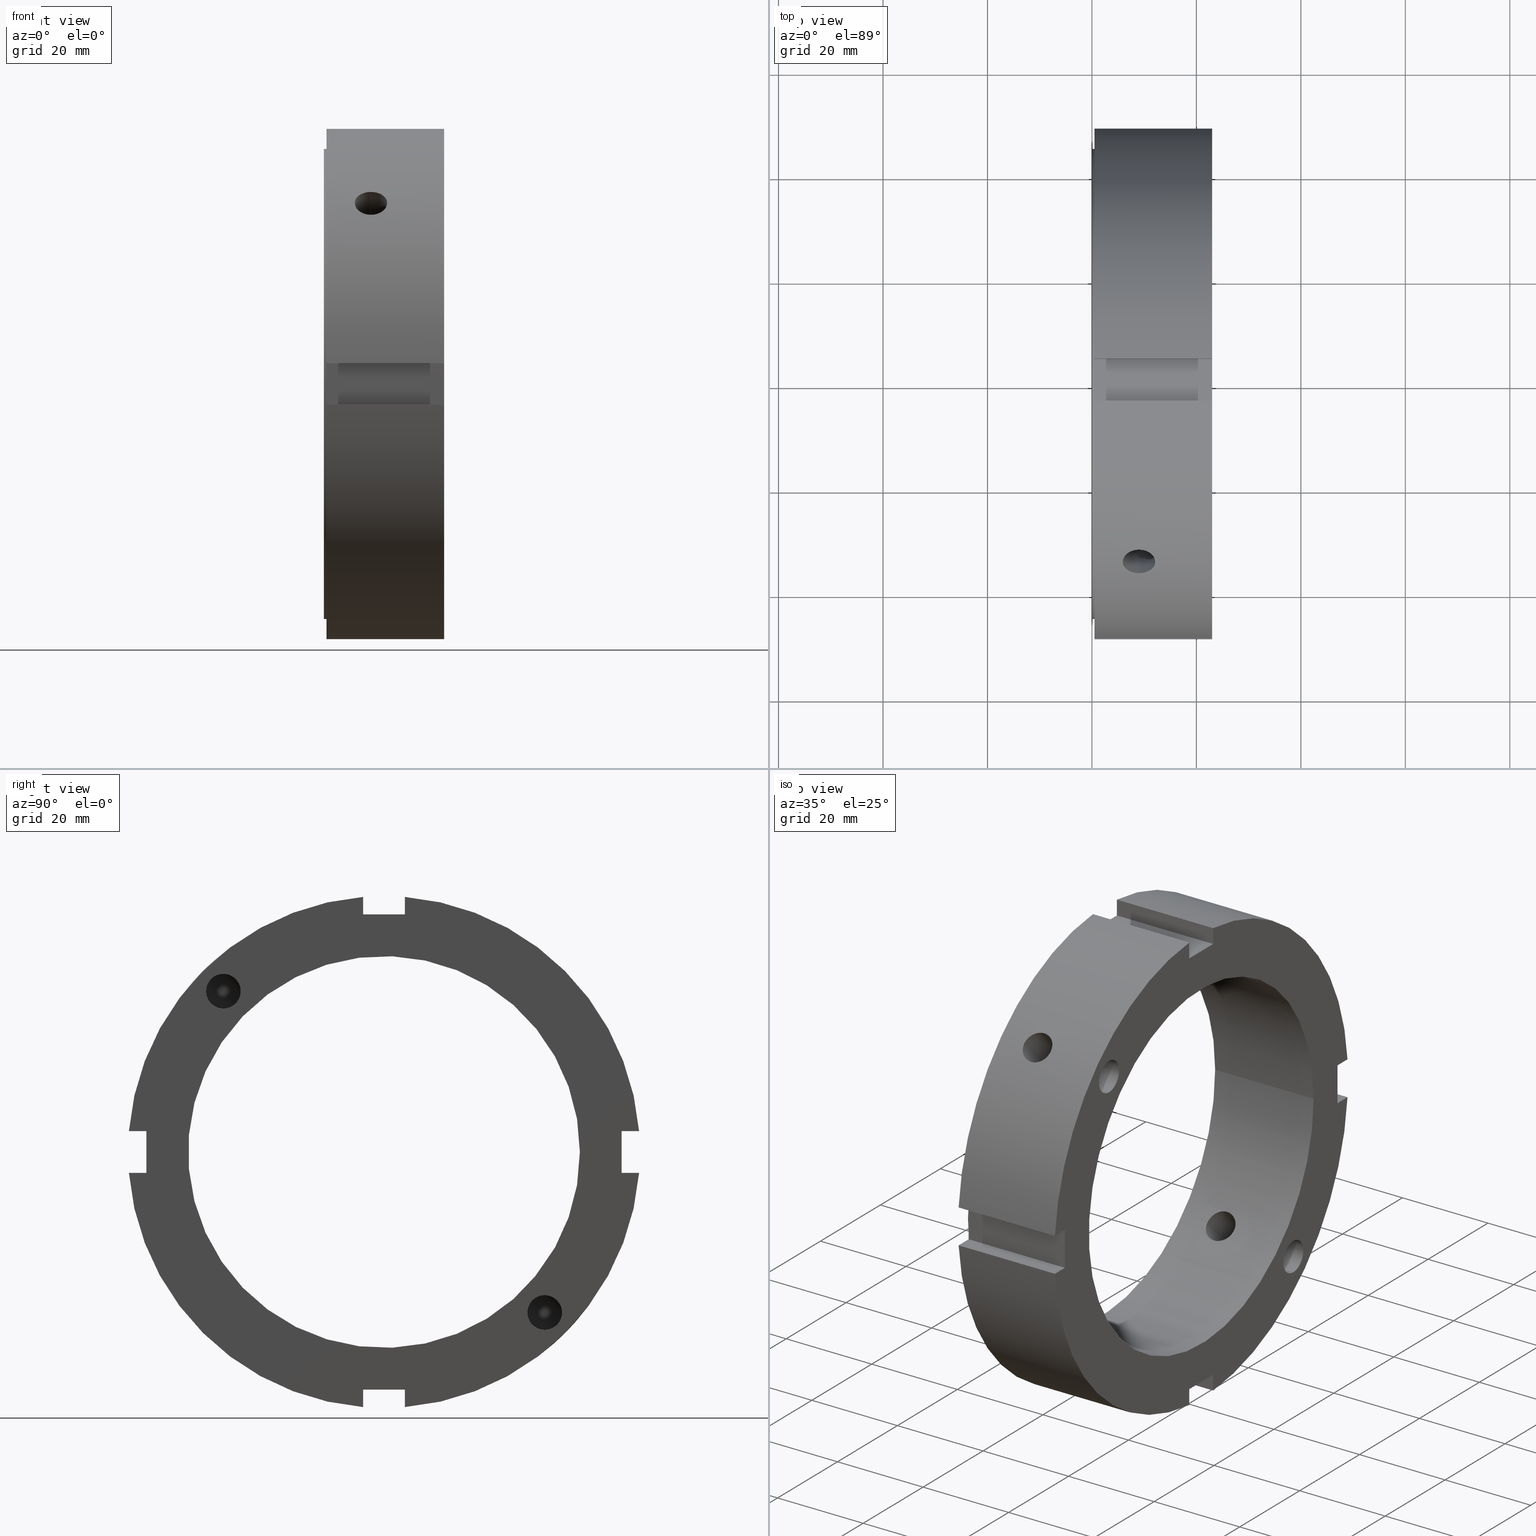
[diagram: canonical four-view strip — front | top / right | iso, engineering-drawing reading convention]
A machine part, canonical four-view strip (front | top / right | iso — engineering-drawing reading convention). The complete STEP part file that produces these views, byte-faithful:
ISO-10303-21;
HEADER;
/****************************************************************
 * Generated by software with PDElib inside                    *
 * PDElib Version v51a, created Wed 11/30/2011                  *
 * ITI Transcendata (http://www.transcendata.com/)              *
 ****************************************************************/
FILE_DESCRIPTION((''),'2;1');
FILE_NAME('C:\\Users\\sugidesign\\Documents\\Fukuda\\3Ddata\\ZMVtype\\FKD ZMV75.stp','2014-02-22T14:54:49',('sugidesign'),(''),'Autodesk Inventor LT ','Autodesk Inventor LT ','');
FILE_SCHEMA(('CONFIG_CONTROL_DESIGN'));
ENDSEC;
DATA;
#5=APPLICATION_CONTEXT('configuration controlled 3D designs of mechanical parts and assemblies');
#6=APPLICATION_PROTOCOL_DEFINITION('International Standard','ap203_configuration_controlled_3d_design_of_mechanical_parts_and_assemblies_mim_lf',2004,#5);
#7=PRODUCT_CONTEXT('',#5,'mechanical');
#8=PRODUCT('FKD ZMV75','FKD ZMV75',$,(#7));
#9=PRODUCT_RELATED_PRODUCT_CATEGORY('part',$,(#8));
#10=PRODUCT_DEFINITION_FORMATION('',$,#8);
#11=PRODUCT_DEFINITION_CONTEXT('part definition',#5,'design');
#12=PRODUCT_DEFINITION('',$,#10,#11);
#18=(NAMED_UNIT(*)PLANE_ANGLE_UNIT()SI_UNIT($,.RADIAN.));
#19=DIMENSIONAL_EXPONENTS(0.0,0.0,0.0,0.0,0.0,0.0,0.0);
#20=PLANE_ANGLE_MEASURE_WITH_UNIT(PLANE_ANGLE_MEASURE(0.0174532925),#18);
#24=(CONVERSION_BASED_UNIT('DEGREE',#20)NAMED_UNIT(#19)PLANE_ANGLE_UNIT());
#28=(NAMED_UNIT(*)SI_UNIT($,.STERADIAN.)SOLID_ANGLE_UNIT());
#32=(LENGTH_UNIT()NAMED_UNIT(*)SI_UNIT(.MILLI.,.METRE.));
#34=UNCERTAINTY_MEASURE_WITH_UNIT(LENGTH_MEASURE(0.01),#32,'DISTANCE_ACCURACY_VALUE','');
#36=(GEOMETRIC_REPRESENTATION_CONTEXT(3)GLOBAL_UNCERTAINTY_ASSIGNED_CONTEXT((#34))GLOBAL_UNIT_ASSIGNED_CONTEXT((#24,#28,#32))REPRESENTATION_CONTEXT('None','None'));
#37=AXIS2_PLACEMENT_3D('',#38,#39,#40);
#38=CARTESIAN_POINT('',(0.0,0.0,0.0));
#39=DIRECTION('',(0.0,0.0,1.0));
#40=DIRECTION('',(1.0,0.0,0.0));
#41=SHAPE_REPRESENTATION('',(#37),#36);
#42=PRODUCT_DEFINITION_SHAPE('','',#12);
#43=SHAPE_DEFINITION_REPRESENTATION(#42,#41);
#49=(NAMED_UNIT(*)PLANE_ANGLE_UNIT()SI_UNIT($,.RADIAN.));
#50=DIMENSIONAL_EXPONENTS(0.0,0.0,0.0,0.0,0.0,0.0,0.0);
#51=PLANE_ANGLE_MEASURE_WITH_UNIT(PLANE_ANGLE_MEASURE(0.0174532925),#49);
#55=(CONVERSION_BASED_UNIT('DEGREE',#51)NAMED_UNIT(#50)PLANE_ANGLE_UNIT());
#59=(NAMED_UNIT(*)SI_UNIT($,.STERADIAN.)SOLID_ANGLE_UNIT());
#63=(LENGTH_UNIT()NAMED_UNIT(*)SI_UNIT(.MILLI.,.METRE.));
#65=UNCERTAINTY_MEASURE_WITH_UNIT(LENGTH_MEASURE(0.000001),#63,'DISTANCE_ACCURACY_VALUE','');
#67=(GEOMETRIC_REPRESENTATION_CONTEXT(3)GLOBAL_UNCERTAINTY_ASSIGNED_CONTEXT((#65))GLOBAL_UNIT_ASSIGNED_CONTEXT((#55,#59,#63))REPRESENTATION_CONTEXT('','3D'));
#68=CARTESIAN_POINT('',(15.999999999999988,-30.759144981614813,30.759144981614824));
#69=DIRECTION('',(-1.0,0.0,0.0));
#70=DIRECTION('',(0.0,-1.0,0.0));
#71=AXIS2_PLACEMENT_3D('',#68,#69,#70);
#72=CYLINDRICAL_SURFACE('',#71,3.3235);
#73=CARTESIAN_POINT('',(22.999999999999989,-34.082644981614813,30.759144981614824));
#74=VERTEX_POINT('',#73);
#75=CARTESIAN_POINT('',(22.999999999999989,-30.759144981614813,30.759144981614824));
#76=DIRECTION('',(-1.0,0.0,0.0));
#77=DIRECTION('',(0.0,-1.0,0.0));
#78=AXIS2_PLACEMENT_3D('',#75,#76,#77);
#79=CIRCLE('',#78,3.3235);
#80=EDGE_CURVE('',#74,#74,#79,.T.);
#81=ORIENTED_EDGE('',*,*,#80,.F.);
#82=EDGE_LOOP('',(#81));
#83=FACE_OUTER_BOUND('',#82,.T.);
#84=CARTESIAN_POINT('',(8.999999999999988,-32.103929802357342,27.719867759000785));
#85=VERTEX_POINT('',#84);
#86=CARTESIAN_POINT('',(8.999999999999989,-27.719867759000827,32.103929802357463));
#87=VERTEX_POINT('',#86);
#88=CARTESIAN_POINT('',(8.999999999999988,-32.103929802357364,27.719867759000792));
#89=CARTESIAN_POINT('',(9.233569825289628,-32.103929802357364,27.719867759000792));
#90=CARTESIAN_POINT('',(9.440966302638055,-32.03927921893596,27.690379529029251));
#91=CARTESIAN_POINT('',(9.836840674384987,-31.848614543575184,27.617629697017346));
#92=CARTESIAN_POINT('',(10.024806661991301,-31.721507585405732,27.574451752299332));
#93=CARTESIAN_POINT('',(10.572531601479483,-31.282857430484391,27.463334944519801));
#94=CARTESIAN_POINT('',(10.911351554404822,-30.915322401904181,27.418381692606431));
#95=CARTESIAN_POINT('',(11.444926544538184,-30.206963745183749,27.464612023475695));
#96=CARTESIAN_POINT('',(11.681418961330905,-29.821051384652488,27.54474331475538));
#97=CARTESIAN_POINT('',(11.92743610565806,-29.258376362692712,27.786766709508587));
#98=CARTESIAN_POINT('',(11.991937069006077,-29.073187033100965,27.887233117096454));
#99=CARTESIAN_POINT('',(12.078237878842899,-28.722934027999706,28.123964358801587));
#100=CARTESIAN_POINT('',(12.099999999999989,-28.557885635003089,28.260265553679563));
#101=CARTESIAN_POINT('',(12.099999999999989,-28.260265553679538,28.557885635003114));
#102=CARTESIAN_POINT('',(12.078237878842899,-28.123964358801569,28.722934027999734));
#103=CARTESIAN_POINT('',(11.991937069006077,-27.887233117096436,29.073187033101004));
#104=CARTESIAN_POINT('',(11.927436105658057,-27.786766709508566,29.258376362692747));
#105=CARTESIAN_POINT('',(11.681418961330902,-27.544743314755365,29.821051384652527));
#106=CARTESIAN_POINT('',(11.444926544538184,-27.464612023475677,30.206963745183785));
#107=CARTESIAN_POINT('',(10.911351554404821,-27.41838169260642,30.915322401904227));
#108=CARTESIAN_POINT('',(10.572531601479486,-27.463334944519801,31.282857430484448));
#109=CARTESIAN_POINT('',(10.024806661991306,-27.574451752299343,31.721507585405796));
#110=CARTESIAN_POINT('',(9.836840674384991,-27.617629697017364,31.848614543575255));
#111=CARTESIAN_POINT('',(9.440966302638056,-27.690379529029268,32.039279218936038));
#112=CARTESIAN_POINT('',(9.23356982528963,-27.719867759000817,32.103929802357442));
#113=CARTESIAN_POINT('',(8.999999999999989,-27.719867759000817,32.103929802357442));
#114=B_SPLINE_CURVE_WITH_KNOTS('',3,(#88,#89,#90,#91,#92,#93,#94,#95,#96,#97,#98,#99,#100,#101,#102,#103,#104,#105,#106,#107,#108,#109,#110,#111,#112,#113),.UNSPECIFIED.,.F.,.U.,(4,2,2,2,2,2,2,2,2,2,2,2,4),(0.0,0.070070947586892,0.140141895173783,0.280283790347566,0.406553296980271,0.469688050296624,0.532822803612976,0.595957556929329,0.659092310245682,0.785361816878387,0.925503712052172,0.995574659639065,1.065645607225957),.UNSPECIFIED.);
#115=EDGE_CURVE('',#85,#87,#114,.T.);
#116=ORIENTED_EDGE('',*,*,#115,.F.);
#117=CARTESIAN_POINT('',(8.999999999999988,-33.798422204228856,29.414360160872299));
#118=VERTEX_POINT('',#117);
#119=CARTESIAN_POINT('',(8.999999999999988,-30.759144981614813,30.759144981614824));
#120=DIRECTION('',(-1.0,0.0,0.0));
#121=DIRECTION('',(0.0,-1.0,0.0));
#122=AXIS2_PLACEMENT_3D('',#119,#120,#121);
#123=CIRCLE('',#122,3.3235);
#124=EDGE_CURVE('',#85,#118,#123,.T.);
#125=ORIENTED_EDGE('',*,*,#124,.T.);
#126=CARTESIAN_POINT('',(8.999999999999989,-29.414360160872182,33.798422204228807));
#127=VERTEX_POINT('',#126);
#128=CARTESIAN_POINT('',(8.999999999999989,-29.414360160872199,33.798422204228821));
#129=CARTESIAN_POINT('',(9.23356982528963,-29.414360160872199,33.798422204228821));
#130=CARTESIAN_POINT('',(9.440966302638055,-29.4790107442936,33.827910434200369));
#131=CARTESIAN_POINT('',(9.836840674384991,-29.669675419654386,33.900660266212277));
#132=CARTESIAN_POINT('',(10.024806661991303,-29.796782377823842,33.943838210930288));
#133=CARTESIAN_POINT('',(10.572531601479485,-30.235432532745193,34.05495501870984));
#134=CARTESIAN_POINT('',(10.911351554404821,-30.602967561325407,34.099908270623217));
#135=CARTESIAN_POINT('',(11.444926544538184,-31.311326218045838,34.053677939753953));
#136=CARTESIAN_POINT('',(11.6814189613309,-31.697238578577107,33.973546648474276));
#137=CARTESIAN_POINT('',(11.927436105658057,-32.25991360053689,33.731523253721079));
#138=CARTESIAN_POINT('',(11.991937069006077,-32.445102930128634,33.631056846133205));
#139=CARTESIAN_POINT('',(12.078237878842899,-32.7953559352299,33.394325604428076));
#140=CARTESIAN_POINT('',(12.099999999999989,-32.96040432822651,33.258024409550096));
#141=CARTESIAN_POINT('',(12.099999999999989,-33.258024409550075,32.960404328226545));
#142=CARTESIAN_POINT('',(12.078237878842899,-33.394325604428047,32.795355935229928));
#143=CARTESIAN_POINT('',(11.991937069006077,-33.631056846133184,32.445102930128662));
#144=CARTESIAN_POINT('',(11.92743610565806,-33.731523253721051,32.259913600536933));
#145=CARTESIAN_POINT('',(11.681418961330902,-33.973546648474262,31.697238578577149));
#146=CARTESIAN_POINT('',(11.444926544538184,-34.053677939753939,31.311326218045885));
#147=CARTESIAN_POINT('',(10.911351554404822,-34.099908270623203,30.60296756132546));
#148=CARTESIAN_POINT('',(10.572531601479486,-34.054955018709833,30.235432532745236));
#149=CARTESIAN_POINT('',(10.024806661991301,-33.943838210930309,29.796782377823906));
#150=CARTESIAN_POINT('',(9.836840674384993,-33.900660266212299,29.66967541965445));
#151=CARTESIAN_POINT('',(9.440966302638058,-33.82791043420039,29.479010744293671));
#152=CARTESIAN_POINT('',(9.233569825289624,-33.798422204228835,29.414360160872267));
#153=CARTESIAN_POINT('',(8.999999999999986,-33.798422204228835,29.414360160872267));
#154=B_SPLINE_CURVE_WITH_KNOTS('',3,(#128,#129,#130,#131,#132,#133,#134,#135,#136,#137,#138,#139,#140,#141,#142,#143,#144,#145,#146,#147,#148,#149,#150,#151,#152,#153),.UNSPECIFIED.,.F.,.U.,(4,2,2,2,2,2,2,2,2,2,2,2,4),(-1.065645607225957,-0.995574659639065,-0.925503712052172,-0.785361816878387,-0.659092310245682,-0.595957556929329,-0.532822803612976,-0.469688050296624,-0.406553296980271,-0.280283790347566,-0.140141895173783,-0.070070947586891,0.0),.UNSPECIFIED.);
#155=EDGE_CURVE('',#127,#118,#154,.T.);
#156=ORIENTED_EDGE('',*,*,#155,.F.);
#157=CARTESIAN_POINT('',(8.999999999999988,-30.759144981614813,30.759144981614824));
#158=DIRECTION('',(-1.0,0.0,0.0));
#159=DIRECTION('',(0.0,-1.0,0.0));
#160=AXIS2_PLACEMENT_3D('',#157,#158,#159);
#161=CIRCLE('',#160,3.3235);
#162=EDGE_CURVE('',#127,#87,#161,.T.);
#163=ORIENTED_EDGE('',*,*,#162,.T.);
#164=EDGE_LOOP('',(#116,#125,#156,#163));
#165=FACE_BOUND('',#164,.T.);
#166=ADVANCED_FACE('',(#83,#165),#72,.F.);
#167=CARTESIAN_POINT('',(8.00151986633094,-30.759144981614813,30.759144981614824));
#168=DIRECTION('',(1.0,0.0,0.0));
#169=DIRECTION('',(0.0,-1.0,0.0));
#170=AXIS2_PLACEMENT_3D('',#167,#168,#169);
#171=CONICAL_SURFACE('',#170,1.66175,59.000000000000007);
#172=CARTESIAN_POINT('',(8.999999999999993,-33.798422204228856,29.414360160872288));
#173=CARTESIAN_POINT('',(8.91196860035539,-33.511066433348851,29.12700438999228));
#174=CARTESIAN_POINT('',(8.863911961712315,-33.220908544485241,28.841072920666697));
#175=CARTESIAN_POINT('',(8.863911961712315,-32.949062793524085,28.569227169705549));
#176=CARTESIAN_POINT('',(8.863911961712315,-32.67297132330188,28.293135699483347));
#177=CARTESIAN_POINT('',(8.912387462444677,-32.389918306113977,28.005856262757405));
#178=CARTESIAN_POINT('',(8.999999999999993,-32.103929802357349,27.719867759000781));
#179=B_SPLINE_CURVE_WITH_KNOTS('',3,(#172,#173,#174,#175,#176,#177,#178),.UNSPECIFIED.,.F.,.U.,(4,3,4),(-0.115334384364827,0.0,0.117135690493131),.UNSPECIFIED.);
#180=EDGE_CURVE('',#118,#85,#179,.T.);
#181=ORIENTED_EDGE('',*,*,#180,.F.);
#182=ORIENTED_EDGE('',*,*,#124,.F.);
#183=EDGE_LOOP('',(#181,#182));
#184=FACE_OUTER_BOUND('',#183,.T.);
#185=ADVANCED_FACE('',(#184),#171,.F.);
#186=CARTESIAN_POINT('',(8.00151986633094,-30.759144981614813,30.759144981614824));
#187=DIRECTION('',(1.0,0.0,0.0));
#188=DIRECTION('',(0.0,-1.0,0.0));
#189=AXIS2_PLACEMENT_3D('',#186,#187,#188);
#190=CONICAL_SURFACE('',#189,1.66175,59.000000000000007);
#191=CARTESIAN_POINT('',(8.999999999999982,-27.719867759000834,32.103929802357449));
#192=CARTESIAN_POINT('',(8.912387462444682,-28.005856262757423,32.389918306114041));
#193=CARTESIAN_POINT('',(8.863911961712329,-28.293135699483337,32.672971323301923));
#194=CARTESIAN_POINT('',(8.863911961712329,-28.841072920666647,33.220908544485226));
#195=CARTESIAN_POINT('',(8.911968600355392,-29.127004389992198,33.511066433348816));
#196=CARTESIAN_POINT('',(8.999999999999982,-29.414360160872185,33.798422204228807));
#197=B_SPLINE_CURVE_WITH_KNOTS('',3,(#191,#192,#193,#194,#195,#196),.UNSPECIFIED.,.F.,.U.,(4,2,4),(1.864951332313788,1.982087022806907,2.097421407171725),.UNSPECIFIED.);
#198=EDGE_CURVE('',#87,#127,#197,.T.);
#199=ORIENTED_EDGE('',*,*,#198,.F.);
#200=ORIENTED_EDGE('',*,*,#162,.F.);
#201=EDGE_LOOP('',(#199,#200));
#202=FACE_OUTER_BOUND('',#201,.T.);
#203=ADVANCED_FACE('',(#202),#190,.F.);
#204=CARTESIAN_POINT('',(8.999999999999988,-99.01767518983668,99.017675189836723));
#205=DIRECTION('',(0.0,-0.707106781186547,0.707106781186548));
#206=DIRECTION('',(1.0,0.0,0.0));
#207=AXIS2_PLACEMENT_3D('',#204,#205,#206);
#208=CYLINDRICAL_SURFACE('',#207,3.100000000000001);
#209=CARTESIAN_POINT('',(8.999999999999988,-36.770854020733651,32.386791977377086));
#210=VERTEX_POINT('',#209);
#211=CARTESIAN_POINT('',(8.999999999999988,-36.770854020733651,32.386791977377079));
#212=CARTESIAN_POINT('',(8.610645427749105,-36.770854020733651,32.386791977377079));
#213=CARTESIAN_POINT('',(8.19540960811856,-36.719443632457484,32.445455339162322));
#214=CARTESIAN_POINT('',(7.431664469387449,-36.508814877172107,32.682281882753045));
#215=CARTESIAN_POINT('',(7.083146320505406,-36.349411488758186,32.860251959384243));
#216=CARTESIAN_POINT('',(6.532791785345752,-35.977678685201752,33.266838003564139));
#217=CARTESIAN_POINT('',(6.294232606441053,-35.740514323406558,33.522552829232694));
#218=CARTESIAN_POINT('',(5.977833838223878,-35.213545143227847,34.075682689198629));
#219=CARTESIAN_POINT('',(5.899999999999985,-34.923547387182843,34.37291716909882));
#220=CARTESIAN_POINT('',(5.89999999999999,-34.372917169098784,34.923547387182879));
#221=CARTESIAN_POINT('',(5.977833838223884,-34.075682689198587,35.21354514322789));
#222=CARTESIAN_POINT('',(6.294232606441072,-33.522552829232644,35.740514323406607));
#223=CARTESIAN_POINT('',(6.532791785345749,-33.266838003564075,35.977678685201809));
#224=CARTESIAN_POINT('',(7.083146320505413,-32.860251959384186,36.349411488758243));
#225=CARTESIAN_POINT('',(7.431664469387462,-32.68228188275301,36.508814877172142));
#226=CARTESIAN_POINT('',(8.19540960811857,-32.445455339162294,36.719443632457512));
#227=CARTESIAN_POINT('',(8.610645427749109,-32.386791977377037,36.77085402073368));
#228=CARTESIAN_POINT('',(9.389354572250872,-32.386791977377037,36.77085402073368));
#229=CARTESIAN_POINT('',(9.804590391881412,-32.445455339162287,36.719443632457512));
#230=CARTESIAN_POINT('',(10.568335530612526,-32.68228188275301,36.508814877172142));
#231=CARTESIAN_POINT('',(10.916853679494567,-32.860251959384208,36.349411488758221));
#232=CARTESIAN_POINT('',(11.467208214654224,-33.266838003564104,35.977678685201788));
#233=CARTESIAN_POINT('',(11.705767393558917,-33.522552829232659,35.740514323406593));
#234=CARTESIAN_POINT('',(12.022166161776093,-34.075682689198594,35.213545143227883));
#235=CARTESIAN_POINT('',(12.099999999999987,-34.372917169098791,34.923547387182879));
#236=CARTESIAN_POINT('',(12.099999999999991,-34.923547387182843,34.37291716909882));
#237=CARTESIAN_POINT('',(12.022166161776095,-35.213545143227847,34.075682689198629));
#238=CARTESIAN_POINT('',(11.705767393558922,-35.740514323406558,33.522552829232694));
#239=CARTESIAN_POINT('',(11.467208214654224,-35.977678685201752,33.266838003564139));
#240=CARTESIAN_POINT('',(10.916853679494572,-36.349411488758186,32.860251959384243));
#241=CARTESIAN_POINT('',(10.568335530612529,-36.508814877172107,32.682281882753045));
#242=CARTESIAN_POINT('',(9.804590391881419,-36.719443632457484,32.445455339162322));
#243=CARTESIAN_POINT('',(9.389354572250872,-36.770854020733651,32.386791977377079));
#244=CARTESIAN_POINT('',(8.999999999999988,-36.770854020733651,32.386791977377079));
#245=B_SPLINE_CURVE_WITH_KNOTS('',3,(#211,#212,#213,#214,#215,#216,#217,#218,#219,#220,#221,#222,#223,#224,#225,#226,#227,#228,#229,#230,#231,#232,#233,#234,#235,#236,#237,#238,#239,#240,#241,#242,#243,#244),.UNSPECIFIED.,.T.,.U.,(4,2,2,2,2,2,2,2,2,2,2,2,2,2,2,2,4),(0.0,0.116806371675265,0.23361274335053,0.350419051690568,0.467225360030607,0.584031668370647,0.700837976710688,0.817644348385952,0.934450720061216,1.051257091736481,1.168063463411746,1.284869771751784,1.401676080091823,1.518482388431861,1.6352886967719,1.752095068447165,1.86890144012243),.UNSPECIFIED.);
#246=EDGE_CURVE('',#210,#210,#245,.T.);
#247=ORIENTED_EDGE('',*,*,#246,.F.);
#248=EDGE_LOOP('',(#247));
#249=FACE_OUTER_BOUND('',#248,.T.);
#250=ORIENTED_EDGE('',*,*,#180,.T.);
#251=ORIENTED_EDGE('',*,*,#115,.T.);
#252=ORIENTED_EDGE('',*,*,#198,.T.);
#253=ORIENTED_EDGE('',*,*,#155,.T.);
#254=EDGE_LOOP('',(#250,#251,#252,#253));
#255=FACE_BOUND('',#254,.T.);
#256=CARTESIAN_POINT('',(8.999999999999988,-28.617776044288341,24.233714000931769));
#257=VERTEX_POINT('',#256);
#258=CARTESIAN_POINT('',(8.999999999999989,-28.617776044288341,24.233714000931769));
#259=CARTESIAN_POINT('',(9.389433940625233,-28.617776044288341,24.233714000931769));
#260=CARTESIAN_POINT('',(9.804703736285871,-28.567464832805097,24.293520341032785));
#261=CARTESIAN_POINT('',(10.568426878396394,-28.360858680613447,24.534401813729826));
#262=CARTESIAN_POINT('',(10.91689537325184,-28.204322086290169,24.715221520793229));
#263=CARTESIAN_POINT('',(11.467166234054487,-27.83800531566839,25.127105264497267));
#264=CARTESIAN_POINT('',(11.705713500587265,-27.603724174121357,25.385633266928984));
#265=CARTESIAN_POINT('',(12.022135293262883,-27.080786093992909,25.942763715019581));
#266=CARTESIAN_POINT('',(12.099999999999991,-26.791875238311988,26.241133350679085));
#267=CARTESIAN_POINT('',(12.099999999999987,-26.241133350679053,26.791875238312016));
#268=CARTESIAN_POINT('',(12.022135293262881,-25.942763715019545,27.080786093992934));
#269=CARTESIAN_POINT('',(11.70571350058726,-25.385633266928952,27.603724174121382));
#270=CARTESIAN_POINT('',(11.467166234054487,-25.127105264497231,27.838005315668415));
#271=CARTESIAN_POINT('',(10.916895373251839,-24.715221520793193,28.204322086290198));
#272=CARTESIAN_POINT('',(10.568426878396384,-24.534401813729808,28.360858680613465));
#273=CARTESIAN_POINT('',(9.804703736285861,-24.293520341032767,28.567464832805115));
#274=CARTESIAN_POINT('',(9.389433940625231,-24.233714000931734,28.617776044288373));
#275=CARTESIAN_POINT('',(8.610566059374744,-24.233714000931734,28.617776044288373));
#276=CARTESIAN_POINT('',(8.195296263714113,-24.293520341032767,28.567464832805115));
#277=CARTESIAN_POINT('',(7.431573121603591,-24.534401813729808,28.360858680613465));
#278=CARTESIAN_POINT('',(7.083104626748138,-24.715221520793193,28.204322086290198));
#279=CARTESIAN_POINT('',(6.532833765945489,-25.127105264497231,27.838005315668415));
#280=CARTESIAN_POINT('',(6.294286499412714,-25.385633266928952,27.603724174121375));
#281=CARTESIAN_POINT('',(5.977864706737091,-25.942763715019545,27.080786093992927));
#282=CARTESIAN_POINT('',(5.899999999999988,-26.241133350679053,26.791875238312013));
#283=CARTESIAN_POINT('',(5.899999999999988,-26.791875238311988,26.241133350679085));
#284=CARTESIAN_POINT('',(5.977864706737091,-27.080786093992902,25.942763715019581));
#285=CARTESIAN_POINT('',(6.294286499412709,-27.60372417412135,25.385633266928984));
#286=CARTESIAN_POINT('',(6.532833765945489,-27.83800531566839,25.127105264497267));
#287=CARTESIAN_POINT('',(7.083104626748135,-28.204322086290169,24.715221520793229));
#288=CARTESIAN_POINT('',(7.431573121603582,-28.360858680613447,24.534401813729826));
#289=CARTESIAN_POINT('',(8.195296263714106,-28.567464832805097,24.293520341032785));
#290=CARTESIAN_POINT('',(8.610566059374746,-28.617776044288341,24.233714000931769));
#291=CARTESIAN_POINT('',(8.999999999999989,-28.617776044288341,24.233714000931769));
#292=B_SPLINE_CURVE_WITH_KNOTS('',3,(#258,#259,#260,#261,#262,#263,#264,#265,#266,#267,#268,#269,#270,#271,#272,#273,#274,#275,#276,#277,#278,#279,#280,#281,#282,#283,#284,#285,#286,#287,#288,#289,#290,#291),.UNSPECIFIED.,.T.,.U.,(4,2,2,2,2,2,2,2,2,2,2,2,2,2,2,2,4),(0.0,0.116830182187573,0.233660364375146,0.350490361403764,0.467320358432382,0.584150355460999,0.700980352489617,0.81781053467719,0.934640716864763,1.051470899052336,1.16830108123991,1.285131078268527,1.401961075297145,1.518791072325763,1.63562106935438,1.752451251541953,1.869281433729527),.UNSPECIFIED.);
#293=EDGE_CURVE('',#257,#257,#292,.T.);
#294=ORIENTED_EDGE('',*,*,#293,.F.);
#295=EDGE_LOOP('',(#294));
#296=FACE_BOUND('',#295,.T.);
#297=ADVANCED_FACE('',(#249,#255,#296),#208,.F.);
#298=CARTESIAN_POINT('',(8.00151986633094,30.759144981614813,-30.759144981614824));
#299=DIRECTION('',(1.0,0.0,0.0));
#300=DIRECTION('',(0.0,0.0,-1.0));
#301=AXIS2_PLACEMENT_3D('',#298,#299,#300);
#302=CONICAL_SURFACE('',#301,1.66175,59.000000000000007);
#303=CARTESIAN_POINT('',(8.999999999999988,27.719867759000778,-32.103929802357342));
#304=VERTEX_POINT('',#303);
#305=CARTESIAN_POINT('',(8.999999999999988,29.414360160872288,-33.798422204228856));
#306=VERTEX_POINT('',#305);
#307=CARTESIAN_POINT('',(8.999999999999993,27.719867759000767,-32.103929802357356));
#308=CARTESIAN_POINT('',(8.91238746238834,28.00585626294129,-32.389918306297872));
#309=CARTESIAN_POINT('',(8.863911961712317,28.293135699010072,-32.672971322828623));
#310=CARTESIAN_POINT('',(8.863911961712315,28.569227169705542,-32.949062793524092));
#311=CARTESIAN_POINT('',(8.863911961712315,28.84107292066669,-33.220908544485241));
#312=CARTESIAN_POINT('',(8.911968600355388,29.127004389992269,-33.511066433348851));
#313=CARTESIAN_POINT('',(8.999999999999993,29.414360160872278,-33.798422204228864));
#314=B_SPLINE_CURVE_WITH_KNOTS('',3,(#307,#308,#309,#310,#311,#312,#313),.UNSPECIFIED.,.F.,.U.,(4,3,4),(-0.117135690693919,0.0,0.115334384364826),.UNSPECIFIED.);
#315=EDGE_CURVE('',#304,#306,#314,.T.);
#316=ORIENTED_EDGE('',*,*,#315,.F.);
#317=CARTESIAN_POINT('',(8.999999999999988,30.759144981614813,-30.759144981614824));
#318=DIRECTION('',(1.0,0.0,0.0));
#319=DIRECTION('',(0.0,0.0,-1.0));
#320=AXIS2_PLACEMENT_3D('',#317,#318,#319);
#321=CIRCLE('',#320,3.3235);
#322=EDGE_CURVE('',#304,#306,#321,.T.);
#323=ORIENTED_EDGE('',*,*,#322,.T.);
#324=EDGE_LOOP('',(#316,#323));
#325=FACE_OUTER_BOUND('',#324,.T.);
#326=ADVANCED_FACE('',(#325),#302,.F.);
#327=CARTESIAN_POINT('',(8.00151986633094,30.759144981614813,-30.759144981614824));
#328=DIRECTION('',(1.0,0.0,0.0));
#329=DIRECTION('',(0.0,0.0,-1.0));
#330=AXIS2_PLACEMENT_3D('',#327,#328,#329);
#331=CONICAL_SURFACE('',#330,1.66175,59.000000000000007);
#332=CARTESIAN_POINT('',(8.999999999999989,33.798422204228807,-29.414360160872192));
#333=VERTEX_POINT('',#332);
#334=CARTESIAN_POINT('',(8.999999999999989,32.103929802357456,-27.719867759000838));
#335=VERTEX_POINT('',#334);
#336=CARTESIAN_POINT('',(8.999999999999986,33.7984222042288,-29.414360160872196));
#337=CARTESIAN_POINT('',(8.911968600355396,33.511066433348809,-29.127004389992205));
#338=CARTESIAN_POINT('',(8.863911961712329,33.220908544485219,-28.841072920666647));
#339=CARTESIAN_POINT('',(8.863911961712329,32.672971323301915,-28.293135699483347));
#340=CARTESIAN_POINT('',(8.912387462444684,32.389918306114048,-28.005856262757437));
#341=CARTESIAN_POINT('',(8.999999999999984,32.103929802357449,-27.719867759000842));
#342=B_SPLINE_CURVE_WITH_KNOTS('',3,(#336,#337,#338,#339,#340,#341),.UNSPECIFIED.,.F.,.U.,(4,2,4),(1.843478900417893,1.958813284782707,2.075948975275827),.UNSPECIFIED.);
#343=EDGE_CURVE('',#333,#335,#342,.T.);
#344=ORIENTED_EDGE('',*,*,#343,.F.);
#345=CARTESIAN_POINT('',(8.999999999999988,30.759144981614813,-30.759144981614824));
#346=DIRECTION('',(1.0,0.0,0.0));
#347=DIRECTION('',(0.0,0.0,-1.0));
#348=AXIS2_PLACEMENT_3D('',#345,#346,#347);
#349=CIRCLE('',#348,3.3235);
#350=EDGE_CURVE('',#333,#335,#349,.T.);
#351=ORIENTED_EDGE('',*,*,#350,.T.);
#352=EDGE_LOOP('',(#344,#351));
#353=FACE_OUTER_BOUND('',#352,.T.);
#354=ADVANCED_FACE('',(#353),#331,.F.);
#355=CARTESIAN_POINT('',(15.999999999999988,30.759144981614813,-30.759144981614824));
#356=DIRECTION('',(1.0,0.0,0.0));
#357=DIRECTION('',(0.0,0.0,-1.0));
#358=AXIS2_PLACEMENT_3D('',#355,#356,#357);
#359=CYLINDRICAL_SURFACE('',#358,3.3235);
#360=CARTESIAN_POINT('',(8.999999999999988,29.414360160872256,-33.798422204228842));
#361=CARTESIAN_POINT('',(9.233569825289628,29.414360160872256,-33.798422204228842));
#362=CARTESIAN_POINT('',(9.440966302638058,29.47901074429366,-33.827910434200398));
#363=CARTESIAN_POINT('',(9.836840674384993,29.669675419654439,-33.900660266212299));
#364=CARTESIAN_POINT('',(10.024806661991301,29.796782377823895,-33.943838210930309));
#365=CARTESIAN_POINT('',(10.572531601479486,30.235432532745229,-34.05495501870984));
#366=CARTESIAN_POINT('',(10.911351554404822,30.60296756132545,-34.099908270623217));
#367=CARTESIAN_POINT('',(11.444926544538184,31.311326218045874,-34.053677939753946));
#368=CARTESIAN_POINT('',(11.681418961330905,31.697238578577146,-33.973546648474269));
#369=CARTESIAN_POINT('',(11.92743610565806,32.259913600536919,-33.731523253721065));
#370=CARTESIAN_POINT('',(11.991937069006077,32.445102930128655,-33.631056846133191));
#371=CARTESIAN_POINT('',(12.078237878842899,32.795355935229921,-33.394325604428062));
#372=CARTESIAN_POINT('',(12.099999999999989,32.960404328226538,-33.258024409550082));
#373=CARTESIAN_POINT('',(12.099999999999989,33.258024409550089,-32.960404328226517));
#374=CARTESIAN_POINT('',(12.078237878842899,33.394325604428062,-32.795355935229907));
#375=CARTESIAN_POINT('',(11.991937069006077,33.631056846133198,-32.445102930128641));
#376=CARTESIAN_POINT('',(11.927436105658057,33.731523253721065,-32.259913600536898));
#377=CARTESIAN_POINT('',(11.6814189613309,33.973546648474269,-31.697238578577114));
#378=CARTESIAN_POINT('',(11.444926544538179,34.053677939753946,-31.311326218045849));
#379=CARTESIAN_POINT('',(10.911351554404817,34.099908270623203,-30.602967561325411));
#380=CARTESIAN_POINT('',(10.572531601479479,34.054955018709826,-30.235432532745186));
#381=CARTESIAN_POINT('',(10.024806661991297,33.943838210930288,-29.796782377823842));
#382=CARTESIAN_POINT('',(9.836840674384989,33.900660266212263,-29.669675419654382));
#383=CARTESIAN_POINT('',(9.440966302638058,33.827910434200355,-29.479010744293603));
#384=CARTESIAN_POINT('',(9.23356982528963,33.798422204228807,-29.414360160872203));
#385=CARTESIAN_POINT('',(8.999999999999988,33.798422204228807,-29.414360160872203));
#386=B_SPLINE_CURVE_WITH_KNOTS('',3,(#360,#361,#362,#363,#364,#365,#366,#367,#368,#369,#370,#371,#372,#373,#374,#375,#376,#377,#378,#379,#380,#381,#382,#383,#384,#385),.UNSPECIFIED.,.F.,.U.,(4,2,2,2,2,2,2,2,2,2,2,2,4),(0.0,0.070070947586892,0.140141895173783,0.280283790347566,0.406553296980271,0.469688050296624,0.532822803612976,0.595957556929329,0.659092310245682,0.785361816878387,0.925503712052172,0.995574659639065,1.065645607225957),.UNSPECIFIED.);
#387=EDGE_CURVE('',#306,#333,#386,.T.);
#388=ORIENTED_EDGE('',*,*,#387,.F.);
#389=ORIENTED_EDGE('',*,*,#322,.F.);
#390=CARTESIAN_POINT('',(8.999999999999988,32.103929802357435,-27.719867759000824));
#391=CARTESIAN_POINT('',(9.233569825289628,32.103929802357435,-27.719867759000824));
#392=CARTESIAN_POINT('',(9.440966302638058,32.039279218936031,-27.690379529029276));
#393=CARTESIAN_POINT('',(9.836840674384991,31.848614543575252,-27.617629697017371));
#394=CARTESIAN_POINT('',(10.024806661991306,31.721507585405789,-27.574451752299353));
#395=CARTESIAN_POINT('',(10.572531601479486,31.282857430484444,-27.463334944519811));
#396=CARTESIAN_POINT('',(10.911351554404817,30.91532240190422,-27.418381692606427));
#397=CARTESIAN_POINT('',(11.44492654453818,30.206963745183781,-27.464612023475684));
#398=CARTESIAN_POINT('',(11.681418961330902,29.821051384652524,-27.544743314755369));
#399=CARTESIAN_POINT('',(11.927436105658058,29.258376362692744,-27.786766709508569));
#400=CARTESIAN_POINT('',(11.991937069006077,29.073187033101,-27.887233117096439));
#401=CARTESIAN_POINT('',(12.078237878842899,28.722934027999727,-28.123964358801572));
#402=CARTESIAN_POINT('',(12.099999999999989,28.55788563500311,-28.260265553679545));
#403=CARTESIAN_POINT('',(12.099999999999989,28.26026555367956,-28.557885635003096));
#404=CARTESIAN_POINT('',(12.078237878842899,28.123964358801572,-28.722934027999717));
#405=CARTESIAN_POINT('',(11.991937069006077,27.887233117096439,-29.073187033100972));
#406=CARTESIAN_POINT('',(11.927436105658058,27.786766709508584,-29.258376362692715));
#407=CARTESIAN_POINT('',(11.681418961330905,27.544743314755372,-29.821051384652492));
#408=CARTESIAN_POINT('',(11.444926544538184,27.464612023475684,-30.206963745183756));
#409=CARTESIAN_POINT('',(10.911351554404822,27.418381692606424,-30.915322401904184));
#410=CARTESIAN_POINT('',(10.572531601479483,27.463334944519794,-31.282857430484398));
#411=CARTESIAN_POINT('',(10.024806661991301,27.574451752299325,-31.721507585405739));
#412=CARTESIAN_POINT('',(9.836840674384987,27.617629697017335,-31.848614543575188));
#413=CARTESIAN_POINT('',(9.440966302638055,27.69037952902924,-32.039279218935967));
#414=CARTESIAN_POINT('',(9.233569825289628,27.719867759000788,-32.103929802357371));
#415=CARTESIAN_POINT('',(8.999999999999988,27.719867759000788,-32.103929802357371));
#416=B_SPLINE_CURVE_WITH_KNOTS('',3,(#390,#391,#392,#393,#394,#395,#396,#397,#398,#399,#400,#401,#402,#403,#404,#405,#406,#407,#408,#409,#410,#411,#412,#413,#414,#415),.UNSPECIFIED.,.F.,.U.,(4,2,2,2,2,2,2,2,2,2,2,2,4),(-1.065645607225957,-0.995574659639064,-0.925503712052172,-0.785361816878387,-0.659092310245682,-0.595957556929329,-0.532822803612976,-0.469688050296623,-0.406553296980271,-0.280283790347566,-0.140141895173783,-0.070070947586891,0.0),.UNSPECIFIED.);
#417=EDGE_CURVE('',#335,#304,#416,.T.);
#418=ORIENTED_EDGE('',*,*,#417,.F.);
#419=ORIENTED_EDGE('',*,*,#350,.F.);
#420=EDGE_LOOP('',(#388,#389,#418,#419));
#421=FACE_OUTER_BOUND('',#420,.T.);
#422=CARTESIAN_POINT('',(22.999999999999989,30.759144981614813,-34.08264498161482));
#423=VERTEX_POINT('',#422);
#424=CARTESIAN_POINT('',(22.999999999999989,30.759144981614813,-30.759144981614824));
#425=DIRECTION('',(-1.0,0.0,0.0));
#426=DIRECTION('',(0.0,0.0,-1.0));
#427=AXIS2_PLACEMENT_3D('',#424,#425,#426);
#428=CIRCLE('',#427,3.3235);
#429=EDGE_CURVE('',#423,#423,#428,.T.);
#430=ORIENTED_EDGE('',*,*,#429,.F.);
#431=EDGE_LOOP('',(#430));
#432=FACE_BOUND('',#431,.T.);
#433=ADVANCED_FACE('',(#421,#432),#359,.F.);
#434=CARTESIAN_POINT('',(8.999999999999988,99.017675189836694,-99.017675189836694));
#435=DIRECTION('',(0.0,-0.707106781186547,0.707106781186548));
#436=DIRECTION('',(1.0,0.0,0.0));
#437=AXIS2_PLACEMENT_3D('',#434,#435,#436);
#438=CYLINDRICAL_SURFACE('',#437,3.100000000000001);
#439=CARTESIAN_POINT('',(8.999999999999988,32.386791977377072,-36.770854020733658));
#440=VERTEX_POINT('',#439);
#441=CARTESIAN_POINT('',(8.999999999999988,32.386791977377072,-36.770854020733658));
#442=CARTESIAN_POINT('',(9.389354572250868,32.386791977377072,-36.770854020733658));
#443=CARTESIAN_POINT('',(9.804590391881417,32.445455339162308,-36.719443632457498));
#444=CARTESIAN_POINT('',(10.568335530612528,32.682281882753031,-36.508814877172128));
#445=CARTESIAN_POINT('',(10.916853679494567,32.860251959384222,-36.349411488758207));
#446=CARTESIAN_POINT('',(11.467208214654224,33.266838003564118,-35.977678685201781));
#447=CARTESIAN_POINT('',(11.705767393558911,33.522552829232673,-35.740514323406579));
#448=CARTESIAN_POINT('',(12.022166161776095,34.075682689198608,-35.213545143227869));
#449=CARTESIAN_POINT('',(12.099999999999987,34.372917169098812,-34.923547387182865));
#450=CARTESIAN_POINT('',(12.099999999999991,34.923547387182865,-34.372917169098805));
#451=CARTESIAN_POINT('',(12.022166161776095,35.213545143227869,-34.075682689198608));
#452=CARTESIAN_POINT('',(11.705767393558922,35.740514323406572,-33.522552829232673));
#453=CARTESIAN_POINT('',(11.467208214654224,35.977678685201766,-33.266838003564125));
#454=CARTESIAN_POINT('',(10.916853679494572,36.349411488758207,-32.860251959384222));
#455=CARTESIAN_POINT('',(10.568335530612529,36.508814877172128,-32.682281882753031));
#456=CARTESIAN_POINT('',(9.804590391881419,36.719443632457498,-32.445455339162301));
#457=CARTESIAN_POINT('',(9.389354572250872,36.770854020733665,-32.386791977377072));
#458=CARTESIAN_POINT('',(8.610645427749105,36.770854020733665,-32.386791977377072));
#459=CARTESIAN_POINT('',(8.195409608118554,36.719443632457505,-32.445455339162301));
#460=CARTESIAN_POINT('',(7.431664469387443,36.508814877172128,-32.682281882753031));
#461=CARTESIAN_POINT('',(7.083146320505405,36.349411488758207,-32.860251959384222));
#462=CARTESIAN_POINT('',(6.532791785345751,35.977678685201766,-33.266838003564125));
#463=CARTESIAN_POINT('',(6.294232606441053,35.740514323406572,-33.522552829232673));
#464=CARTESIAN_POINT('',(5.977833838223878,35.213545143227869,-34.075682689198608));
#465=CARTESIAN_POINT('',(5.899999999999985,34.923547387182865,-34.372917169098805));
#466=CARTESIAN_POINT('',(5.89999999999999,34.372917169098812,-34.923547387182865));
#467=CARTESIAN_POINT('',(5.977833838223884,34.075682689198608,-35.213545143227869));
#468=CARTESIAN_POINT('',(6.294232606441065,33.522552829232673,-35.740514323406579));
#469=CARTESIAN_POINT('',(6.532791785345751,33.266838003564118,-35.977678685201781));
#470=CARTESIAN_POINT('',(7.083146320505409,32.860251959384222,-36.349411488758207));
#471=CARTESIAN_POINT('',(7.431664469387453,32.682281882753031,-36.508814877172128));
#472=CARTESIAN_POINT('',(8.195409608118563,32.445455339162308,-36.719443632457498));
#473=CARTESIAN_POINT('',(8.610645427749107,32.386791977377072,-36.770854020733658));
#474=CARTESIAN_POINT('',(8.999999999999988,32.386791977377072,-36.770854020733658));
#475=B_SPLINE_CURVE_WITH_KNOTS('',3,(#441,#442,#443,#444,#445,#446,#447,#448,#449,#450,#451,#452,#453,#454,#455,#456,#457,#458,#459,#460,#461,#462,#463,#464,#465,#466,#467,#468,#469,#470,#471,#472,#473,#474),.UNSPECIFIED.,.T.,.U.,(4,2,2,2,2,2,2,2,2,2,2,2,2,2,2,2,4),(0.0,0.116806371675264,0.233612743350529,0.350419051690568,0.467225360030607,0.584031668370645,0.700837976710684,0.817644348385949,0.934450720061214,1.051257091736479,1.168063463411743,1.284869771751782,1.40167608009182,1.518482388431859,1.635288696771899,1.752095068447163,1.868901440122427),.UNSPECIFIED.);
#476=EDGE_CURVE('',#440,#440,#475,.T.);
#477=ORIENTED_EDGE('',*,*,#476,.F.);
#478=EDGE_LOOP('',(#477));
#479=FACE_OUTER_BOUND('',#478,.T.);
#480=ORIENTED_EDGE('',*,*,#315,.T.);
#481=ORIENTED_EDGE('',*,*,#387,.T.);
#482=ORIENTED_EDGE('',*,*,#343,.T.);
#483=ORIENTED_EDGE('',*,*,#417,.T.);
#484=EDGE_LOOP('',(#480,#481,#482,#483));
#485=FACE_BOUND('',#484,.T.);
#486=CARTESIAN_POINT('',(8.999999999999988,24.233714000931762,-28.617776044288345));
#487=VERTEX_POINT('',#486);
#488=CARTESIAN_POINT('',(8.999999999999988,24.233714000931759,-28.617776044288345));
#489=CARTESIAN_POINT('',(8.610566059374744,24.233714000931759,-28.617776044288345));
#490=CARTESIAN_POINT('',(8.195296263714113,24.293520341032785,-28.567464832805097));
#491=CARTESIAN_POINT('',(7.43157312160359,24.534401813729826,-28.360858680613447));
#492=CARTESIAN_POINT('',(7.083104626748135,24.7152215207932,-28.204322086290183));
#493=CARTESIAN_POINT('',(6.532833765945486,25.127105264497239,-27.838005315668404));
#494=CARTESIAN_POINT('',(6.294286499412715,25.38563326692897,-27.603724174121371));
#495=CARTESIAN_POINT('',(5.977864706737092,25.942763715019566,-27.080786093992923));
#496=CARTESIAN_POINT('',(5.899999999999988,26.241133350679071,-26.791875238311999));
#497=CARTESIAN_POINT('',(5.899999999999988,26.791875238312002,-26.241133350679068));
#498=CARTESIAN_POINT('',(5.977864706737091,27.08078609399292,-25.942763715019556));
#499=CARTESIAN_POINT('',(6.294286499412708,27.603724174121368,-25.385633266928966));
#500=CARTESIAN_POINT('',(6.532833765945487,27.838005315668397,-25.127105264497246));
#501=CARTESIAN_POINT('',(7.083104626748133,28.204322086290183,-24.7152215207932));
#502=CARTESIAN_POINT('',(7.43157312160358,28.360858680613465,-24.534401813729808));
#503=CARTESIAN_POINT('',(8.195296263714102,28.567464832805115,-24.293520341032767));
#504=CARTESIAN_POINT('',(8.610566059374744,28.617776044288348,-24.233714000931755));
#505=CARTESIAN_POINT('',(9.389433940625231,28.617776044288348,-24.233714000931755));
#506=CARTESIAN_POINT('',(9.804703736285875,28.567464832805115,-24.293520341032767));
#507=CARTESIAN_POINT('',(10.568426878396398,28.360858680613465,-24.534401813729808));
#508=CARTESIAN_POINT('',(10.916895373251844,28.204322086290183,-24.7152215207932));
#509=CARTESIAN_POINT('',(11.467166234054488,27.838005315668397,-25.127105264497246));
#510=CARTESIAN_POINT('',(11.705713500587267,27.603724174121368,-25.385633266928966));
#511=CARTESIAN_POINT('',(12.022135293262883,27.08078609399292,-25.942763715019556));
#512=CARTESIAN_POINT('',(12.099999999999991,26.791875238312002,-26.241133350679064));
#513=CARTESIAN_POINT('',(12.099999999999987,26.241133350679071,-26.791875238311999));
#514=CARTESIAN_POINT('',(12.022135293262883,25.942763715019566,-27.080786093992923));
#515=CARTESIAN_POINT('',(11.70571350058726,25.38563326692897,-27.603724174121371));
#516=CARTESIAN_POINT('',(11.467166234054492,25.127105264497239,-27.838005315668404));
#517=CARTESIAN_POINT('',(10.91689537325184,24.7152215207932,-28.204322086290183));
#518=CARTESIAN_POINT('',(10.568426878396389,24.534401813729826,-28.360858680613447));
#519=CARTESIAN_POINT('',(9.804703736285866,24.293520341032785,-28.567464832805097));
#520=CARTESIAN_POINT('',(9.389433940625233,24.233714000931759,-28.617776044288345));
#521=CARTESIAN_POINT('',(8.999999999999989,24.233714000931759,-28.617776044288345));
#522=B_SPLINE_CURVE_WITH_KNOTS('',3,(#488,#489,#490,#491,#492,#493,#494,#495,#496,#497,#498,#499,#500,#501,#502,#503,#504,#505,#506,#507,#508,#509,#510,#511,#512,#513,#514,#515,#516,#517,#518,#519,#520,#521),.UNSPECIFIED.,.T.,.U.,(4,2,2,2,2,2,2,2,2,2,2,2,2,2,2,2,4),(0.0,0.116830182187573,0.233660364375146,0.350490361403764,0.467320358432382,0.584150355461,0.700980352489617,0.81781053467719,0.934640716864763,1.051470899052337,1.16830108123991,1.285131078268528,1.401961075297145,1.518791072325763,1.635621069354382,1.752451251541954,1.869281433729527),.UNSPECIFIED.);
#523=EDGE_CURVE('',#487,#487,#522,.T.);
#524=ORIENTED_EDGE('',*,*,#523,.F.);
#525=EDGE_LOOP('',(#524));
#526=FACE_BOUND('',#525,.T.);
#527=ADVANCED_FACE('',(#479,#485,#526),#438,.F.);
#528=CARTESIAN_POINT('',(22.999999999999989,-4.000000000000006,-45.500000000000007));
#529=DIRECTION('',(0.0,-1.0,0.0));
#530=DIRECTION('',(-1.0,0.0,0.0));
#531=AXIS2_PLACEMENT_3D('',#528,#529,#530);
#532=PLANE('',#531);
#533=CARTESIAN_POINT('',(0.499999999999989,-4.000000000000006,-45.500000000000007));
#534=VERTEX_POINT('',#533);
#535=CARTESIAN_POINT('',(0.499999999999989,-4.000000000000007,-48.836461788299125));
#536=VERTEX_POINT('',#535);
#537=CARTESIAN_POINT('',(0.499999999999989,-4.000000000000004,-45.500000000000007));
#538=DIRECTION('',(0.0,0.0,-1.0));
#539=VECTOR('',#538,3.336461788299118);
#540=LINE('',#537,#539);
#541=EDGE_CURVE('',#534,#536,#540,.T.);
#542=ORIENTED_EDGE('',*,*,#541,.F.);
#543=CARTESIAN_POINT('',(22.999999999999989,-4.000000000000006,-45.500000000000007));
#544=VERTEX_POINT('',#543);
#545=CARTESIAN_POINT('',(22.999999999999989,-4.000000000000006,-45.500000000000007));
#546=DIRECTION('',(-1.0,0.0,0.0));
#547=VECTOR('',#546,22.5);
#548=LINE('',#545,#547);
#549=EDGE_CURVE('',#544,#534,#548,.T.);
#550=ORIENTED_EDGE('',*,*,#549,.F.);
#551=CARTESIAN_POINT('',(22.999999999999989,-4.000000000000007,-48.836461788299125));
#552=VERTEX_POINT('',#551);
#553=CARTESIAN_POINT('',(22.999999999999989,-4.000000000000006,-48.836461788299125));
#554=DIRECTION('',(0.0,0.0,1.0));
#555=VECTOR('',#554,3.336461788299118);
#556=LINE('',#553,#555);
#557=EDGE_CURVE('',#552,#544,#556,.T.);
#558=ORIENTED_EDGE('',*,*,#557,.F.);
#559=CARTESIAN_POINT('',(0.499999999999989,-4.000000000000007,-48.836461788299125));
#560=DIRECTION('',(1.0,0.0,0.0));
#561=VECTOR('',#560,22.5);
#562=LINE('',#559,#561);
#563=EDGE_CURVE('',#536,#552,#562,.T.);
#564=ORIENTED_EDGE('',*,*,#563,.F.);
#565=EDGE_LOOP('',(#542,#550,#558,#564));
#566=FACE_OUTER_BOUND('',#565,.T.);
#567=ADVANCED_FACE('',(#566),#532,.F.);
#568=CARTESIAN_POINT('',(22.999999999999989,3.999999999999989,-49.0));
#569=DIRECTION('',(0.0,1.0,0.0));
#570=DIRECTION('',(1.0,0.0,0.0));
#571=AXIS2_PLACEMENT_3D('',#568,#569,#570);
#572=PLANE('',#571);
#573=CARTESIAN_POINT('',(0.499999999999989,3.999999999999989,-48.836461788299125));
#574=VERTEX_POINT('',#573);
#575=CARTESIAN_POINT('',(0.499999999999989,3.99999999999999,-45.500000000000007));
#576=VERTEX_POINT('',#575);
#577=CARTESIAN_POINT('',(0.499999999999989,3.999999999999986,-48.836461788299118));
#578=DIRECTION('',(0.0,0.0,1.0));
#579=VECTOR('',#578,3.336461788299111);
#580=LINE('',#577,#579);
#581=EDGE_CURVE('',#574,#576,#580,.T.);
#582=ORIENTED_EDGE('',*,*,#581,.F.);
#583=CARTESIAN_POINT('',(22.999999999999989,3.999999999999989,-48.836461788299125));
#584=VERTEX_POINT('',#583);
#585=CARTESIAN_POINT('',(22.999999999999989,3.999999999999989,-48.836461788299125));
#586=DIRECTION('',(-1.0,0.0,0.0));
#587=VECTOR('',#586,22.5);
#588=LINE('',#585,#587);
#589=EDGE_CURVE('',#584,#574,#588,.T.);
#590=ORIENTED_EDGE('',*,*,#589,.F.);
#591=CARTESIAN_POINT('',(22.999999999999989,3.99999999999999,-45.500000000000007));
#592=VERTEX_POINT('',#591);
#593=CARTESIAN_POINT('',(22.999999999999989,3.999999999999989,-45.500000000000007));
#594=DIRECTION('',(0.0,0.0,-1.0));
#595=VECTOR('',#594,3.336461788299111);
#596=LINE('',#593,#595);
#597=EDGE_CURVE('',#592,#584,#596,.T.);
#598=ORIENTED_EDGE('',*,*,#597,.F.);
#599=CARTESIAN_POINT('',(22.999999999999989,3.99999999999999,-45.500000000000007));
#600=DIRECTION('',(-1.0,0.0,0.0));
#601=VECTOR('',#600,22.5);
#602=LINE('',#599,#601);
#603=EDGE_CURVE('',#592,#576,#602,.T.);
#604=ORIENTED_EDGE('',*,*,#603,.T.);
#605=EDGE_LOOP('',(#582,#590,#598,#604));
#606=FACE_OUTER_BOUND('',#605,.T.);
#607=ADVANCED_FACE('',(#606),#572,.F.);
#608=CARTESIAN_POINT('',(22.999999999999989,3.99999999999999,-45.500000000000007));
#609=DIRECTION('',(0.0,0.0,1.0));
#610=DIRECTION('',(0.0,-1.0,0.0));
#611=AXIS2_PLACEMENT_3D('',#608,#609,#610);
#612=PLANE('',#611);
#613=CARTESIAN_POINT('',(0.499999999999989,3.999999999999989,-45.5));
#614=DIRECTION('',(0.0,-1.0,0.0));
#615=VECTOR('',#614,7.999999999999996);
#616=LINE('',#613,#615);
#617=EDGE_CURVE('',#576,#534,#616,.T.);
#618=ORIENTED_EDGE('',*,*,#617,.F.);
#619=ORIENTED_EDGE('',*,*,#603,.F.);
#620=CARTESIAN_POINT('',(22.999999999999989,-4.000000000000007,-45.5));
#621=DIRECTION('',(0.0,1.0,0.0));
#622=VECTOR('',#621,7.999999999999996);
#623=LINE('',#620,#622);
#624=EDGE_CURVE('',#544,#592,#623,.T.);
#625=ORIENTED_EDGE('',*,*,#624,.F.);
#626=ORIENTED_EDGE('',*,*,#549,.T.);
#627=EDGE_LOOP('',(#618,#619,#625,#626));
#628=FACE_OUTER_BOUND('',#627,.T.);
#629=ADVANCED_FACE('',(#628),#612,.F.);
#630=CARTESIAN_POINT('',(22.999999999999989,-45.500000000000007,4.000000000000004));
#631=DIRECTION('',(0.0,0.0,1.0));
#632=DIRECTION('',(-1.0,0.0,0.0));
#633=AXIS2_PLACEMENT_3D('',#630,#631,#632);
#634=PLANE('',#633);
#635=CARTESIAN_POINT('',(0.499999999999989,-45.500000000000007,4.000000000000004));
#636=VERTEX_POINT('',#635);
#637=CARTESIAN_POINT('',(0.499999999999989,-48.836461788299125,4.000000000000004));
#638=VERTEX_POINT('',#637);
#639=CARTESIAN_POINT('',(0.499999999999989,-45.500000000000007,4.000000000000004));
#640=DIRECTION('',(0.0,-1.0,0.0));
#641=VECTOR('',#640,3.336461788299118);
#642=LINE('',#639,#641);
#643=EDGE_CURVE('',#636,#638,#642,.T.);
#644=ORIENTED_EDGE('',*,*,#643,.F.);
#645=CARTESIAN_POINT('',(22.999999999999989,-45.500000000000007,4.000000000000004));
#646=VERTEX_POINT('',#645);
#647=CARTESIAN_POINT('',(22.999999999999989,-45.500000000000007,4.000000000000004));
#648=DIRECTION('',(-1.0,0.0,0.0));
#649=VECTOR('',#648,22.5);
#650=LINE('',#647,#649);
#651=EDGE_CURVE('',#646,#636,#650,.T.);
#652=ORIENTED_EDGE('',*,*,#651,.F.);
#653=CARTESIAN_POINT('',(22.999999999999989,-48.836461788299125,4.000000000000004));
#654=VERTEX_POINT('',#653);
#655=CARTESIAN_POINT('',(22.999999999999989,-48.836461788299125,4.000000000000004));
#656=DIRECTION('',(0.0,1.0,0.0));
#657=VECTOR('',#656,3.336461788299118);
#658=LINE('',#655,#657);
#659=EDGE_CURVE('',#654,#646,#658,.T.);
#660=ORIENTED_EDGE('',*,*,#659,.F.);
#661=CARTESIAN_POINT('',(0.499999999999989,-48.836461788299125,4.000000000000004));
#662=DIRECTION('',(1.0,0.0,0.0));
#663=VECTOR('',#662,22.5);
#664=LINE('',#661,#663);
#665=EDGE_CURVE('',#638,#654,#664,.T.);
#666=ORIENTED_EDGE('',*,*,#665,.F.);
#667=EDGE_LOOP('',(#644,#652,#660,#666));
#668=FACE_OUTER_BOUND('',#667,.T.);
#669=ADVANCED_FACE('',(#668),#634,.F.);
#670=CARTESIAN_POINT('',(22.999999999999989,-49.0,-3.999999999999993));
#671=DIRECTION('',(0.0,0.0,-1.0));
#672=DIRECTION('',(1.0,0.0,0.0));
#673=AXIS2_PLACEMENT_3D('',#670,#671,#672);
#674=PLANE('',#673);
#675=CARTESIAN_POINT('',(0.499999999999989,-48.836461788299125,-3.999999999999993));
#676=VERTEX_POINT('',#675);
#677=CARTESIAN_POINT('',(0.499999999999989,-45.500000000000007,-3.999999999999993));
#678=VERTEX_POINT('',#677);
#679=CARTESIAN_POINT('',(0.499999999999989,-48.836461788299118,-3.999999999999993));
#680=DIRECTION('',(0.0,1.0,0.0));
#681=VECTOR('',#680,3.336461788299118);
#682=LINE('',#679,#681);
#683=EDGE_CURVE('',#676,#678,#682,.T.);
#684=ORIENTED_EDGE('',*,*,#683,.F.);
#685=CARTESIAN_POINT('',(22.999999999999989,-48.836461788299125,-3.999999999999993));
#686=VERTEX_POINT('',#685);
#687=CARTESIAN_POINT('',(22.999999999999989,-48.836461788299125,-3.999999999999993));
#688=DIRECTION('',(-1.0,0.0,0.0));
#689=VECTOR('',#688,22.5);
#690=LINE('',#687,#689);
#691=EDGE_CURVE('',#686,#676,#690,.T.);
#692=ORIENTED_EDGE('',*,*,#691,.F.);
#693=CARTESIAN_POINT('',(22.999999999999989,-45.500000000000007,-3.999999999999993));
#694=VERTEX_POINT('',#693);
#695=CARTESIAN_POINT('',(22.999999999999989,-45.500000000000014,-3.999999999999993));
#696=DIRECTION('',(0.0,-1.0,0.0));
#697=VECTOR('',#696,3.336461788299104);
#698=LINE('',#695,#697);
#699=EDGE_CURVE('',#694,#686,#698,.T.);
#700=ORIENTED_EDGE('',*,*,#699,.F.);
#701=CARTESIAN_POINT('',(22.999999999999989,-45.500000000000007,-3.999999999999993));
#702=DIRECTION('',(-1.0,0.0,0.0));
#703=VECTOR('',#702,22.5);
#704=LINE('',#701,#703);
#705=EDGE_CURVE('',#694,#678,#704,.T.);
#706=ORIENTED_EDGE('',*,*,#705,.T.);
#707=EDGE_LOOP('',(#684,#692,#700,#706));
#708=FACE_OUTER_BOUND('',#707,.T.);
#709=ADVANCED_FACE('',(#708),#674,.F.);
#710=CARTESIAN_POINT('',(22.999999999999989,-45.500000000000007,-3.999999999999993));
#711=DIRECTION('',(0.0,1.0,0.0));
#712=DIRECTION('',(0.0,0.0,1.0));
#713=AXIS2_PLACEMENT_3D('',#710,#711,#712);
#714=PLANE('',#713);
#715=CARTESIAN_POINT('',(0.499999999999989,-45.500000000000007,-3.999999999999993));
#716=DIRECTION('',(0.0,0.0,1.0));
#717=VECTOR('',#716,7.999999999999996);
#718=LINE('',#715,#717);
#719=EDGE_CURVE('',#678,#636,#718,.T.);
#720=ORIENTED_EDGE('',*,*,#719,.F.);
#721=ORIENTED_EDGE('',*,*,#705,.F.);
#722=CARTESIAN_POINT('',(22.999999999999989,-45.500000000000007,4.000000000000004));
#723=DIRECTION('',(0.0,0.0,-1.0));
#724=VECTOR('',#723,7.999999999999996);
#725=LINE('',#722,#724);
#726=EDGE_CURVE('',#646,#694,#725,.T.);
#727=ORIENTED_EDGE('',*,*,#726,.F.);
#728=ORIENTED_EDGE('',*,*,#651,.T.);
#729=EDGE_LOOP('',(#720,#721,#727,#728));
#730=FACE_OUTER_BOUND('',#729,.T.);
#731=ADVANCED_FACE('',(#730),#714,.F.);
#732=CARTESIAN_POINT('',(22.999999999999989,4.000000000000001,45.500000000000007));
#733=DIRECTION('',(0.0,1.0,0.0));
#734=DIRECTION('',(-1.0,0.0,0.0));
#735=AXIS2_PLACEMENT_3D('',#732,#733,#734);
#736=PLANE('',#735);
#737=CARTESIAN_POINT('',(0.499999999999989,4.000000000000001,45.500000000000007));
#738=VERTEX_POINT('',#737);
#739=CARTESIAN_POINT('',(0.499999999999989,4.000000000000001,48.836461788299125));
#740=VERTEX_POINT('',#739);
#741=CARTESIAN_POINT('',(0.499999999999989,4.000000000000005,45.500000000000007));
#742=DIRECTION('',(0.0,0.0,1.0));
#743=VECTOR('',#742,3.336461788299111);
#744=LINE('',#741,#743);
#745=EDGE_CURVE('',#738,#740,#744,.T.);
#746=ORIENTED_EDGE('',*,*,#745,.F.);
#747=CARTESIAN_POINT('',(22.999999999999989,4.000000000000001,45.500000000000007));
#748=VERTEX_POINT('',#747);
#749=CARTESIAN_POINT('',(22.999999999999989,4.000000000000001,45.500000000000007));
#750=DIRECTION('',(-1.0,0.0,0.0));
#751=VECTOR('',#750,22.5);
#752=LINE('',#749,#751);
#753=EDGE_CURVE('',#748,#738,#752,.T.);
#754=ORIENTED_EDGE('',*,*,#753,.F.);
#755=CARTESIAN_POINT('',(22.999999999999989,4.000000000000001,48.836461788299125));
#756=VERTEX_POINT('',#755);
#757=CARTESIAN_POINT('',(22.999999999999989,4.000000000000001,48.836461788299118));
#758=DIRECTION('',(0.0,0.0,-1.0));
#759=VECTOR('',#758,3.336461788299111);
#760=LINE('',#757,#759);
#761=EDGE_CURVE('',#756,#748,#760,.T.);
#762=ORIENTED_EDGE('',*,*,#761,.F.);
#763=CARTESIAN_POINT('',(0.499999999999989,4.0,48.836461788299125));
#764=DIRECTION('',(1.0,0.0,0.0));
#765=VECTOR('',#764,22.5);
#766=LINE('',#763,#765);
#767=EDGE_CURVE('',#740,#756,#766,.T.);
#768=ORIENTED_EDGE('',*,*,#767,.F.);
#769=EDGE_LOOP('',(#746,#754,#762,#768));
#770=FACE_OUTER_BOUND('',#769,.T.);
#771=ADVANCED_FACE('',(#770),#736,.F.);
#772=CARTESIAN_POINT('',(22.999999999999989,-3.999999999999995,49.0));
#773=DIRECTION('',(0.0,-1.0,0.0));
#774=DIRECTION('',(1.0,0.0,0.0));
#775=AXIS2_PLACEMENT_3D('',#772,#773,#774);
#776=PLANE('',#775);
#777=CARTESIAN_POINT('',(0.499999999999989,-3.999999999999995,48.836461788299125));
#778=VERTEX_POINT('',#777);
#779=CARTESIAN_POINT('',(0.499999999999989,-3.999999999999995,45.500000000000007));
#780=VERTEX_POINT('',#779);
#781=CARTESIAN_POINT('',(0.499999999999989,-3.999999999999993,48.836461788299118));
#782=DIRECTION('',(0.0,0.0,-1.0));
#783=VECTOR('',#782,3.336461788299111);
#784=LINE('',#781,#783);
#785=EDGE_CURVE('',#778,#780,#784,.T.);
#786=ORIENTED_EDGE('',*,*,#785,.F.);
#787=CARTESIAN_POINT('',(22.999999999999989,-3.999999999999995,48.836461788299125));
#788=VERTEX_POINT('',#787);
#789=CARTESIAN_POINT('',(22.999999999999989,-3.999999999999996,48.836461788299125));
#790=DIRECTION('',(-1.0,0.0,0.0));
#791=VECTOR('',#790,22.5);
#792=LINE('',#789,#791);
#793=EDGE_CURVE('',#788,#778,#792,.T.);
#794=ORIENTED_EDGE('',*,*,#793,.F.);
#795=CARTESIAN_POINT('',(22.999999999999989,-3.999999999999995,45.500000000000007));
#796=VERTEX_POINT('',#795);
#797=CARTESIAN_POINT('',(22.999999999999989,-3.999999999999993,45.500000000000007));
#798=DIRECTION('',(0.0,0.0,1.0));
#799=VECTOR('',#798,3.336461788299111);
#800=LINE('',#797,#799);
#801=EDGE_CURVE('',#796,#788,#800,.T.);
#802=ORIENTED_EDGE('',*,*,#801,.F.);
#803=CARTESIAN_POINT('',(22.999999999999989,-3.999999999999995,45.500000000000007));
#804=DIRECTION('',(-1.0,0.0,0.0));
#805=VECTOR('',#804,22.5);
#806=LINE('',#803,#805);
#807=EDGE_CURVE('',#796,#780,#806,.T.);
#808=ORIENTED_EDGE('',*,*,#807,.T.);
#809=EDGE_LOOP('',(#786,#794,#802,#808));
#810=FACE_OUTER_BOUND('',#809,.T.);
#811=ADVANCED_FACE('',(#810),#776,.F.);
#812=CARTESIAN_POINT('',(22.999999999999989,-3.999999999999995,45.500000000000007));
#813=DIRECTION('',(0.0,0.0,-1.0));
#814=DIRECTION('',(0.0,1.0,0.0));
#815=AXIS2_PLACEMENT_3D('',#812,#813,#814);
#816=PLANE('',#815);
#817=CARTESIAN_POINT('',(0.499999999999989,-3.999999999999996,45.500000000000007));
#818=DIRECTION('',(0.0,1.0,0.0));
#819=VECTOR('',#818,7.999999999999996);
#820=LINE('',#817,#819);
#821=EDGE_CURVE('',#780,#738,#820,.T.);
#822=ORIENTED_EDGE('',*,*,#821,.F.);
#823=ORIENTED_EDGE('',*,*,#807,.F.);
#824=CARTESIAN_POINT('',(22.999999999999989,4.000000000000004,45.500000000000007));
#825=DIRECTION('',(0.0,-1.0,0.0));
#826=VECTOR('',#825,8.0);
#827=LINE('',#824,#826);
#828=EDGE_CURVE('',#748,#796,#827,.T.);
#829=ORIENTED_EDGE('',*,*,#828,.F.);
#830=ORIENTED_EDGE('',*,*,#753,.T.);
#831=EDGE_LOOP('',(#822,#823,#829,#830));
#832=FACE_OUTER_BOUND('',#831,.T.);
#833=ADVANCED_FACE('',(#832),#816,.F.);
#834=CARTESIAN_POINT('',(11.749999999999989,0.0,0.0));
#835=DIRECTION('',(1.0,0.0,0.0));
#836=DIRECTION('',(0.0,1.0,0.0));
#837=AXIS2_PLACEMENT_3D('',#834,#835,#836);
#838=CYLINDRICAL_SURFACE('',#837,49.0);
#839=ORIENTED_EDGE('',*,*,#767,.T.);
#840=CARTESIAN_POINT('',(22.999999999999989,48.836461788299125,3.999999999999998));
#841=VERTEX_POINT('',#840);
#842=CARTESIAN_POINT('',(22.999999999999989,0.0,0.0));
#843=DIRECTION('',(1.0,0.0,0.0));
#844=DIRECTION('',(0.0,1.0,0.0));
#845=AXIS2_PLACEMENT_3D('',#842,#843,#844);
#846=CIRCLE('',#845,49.0);
#847=EDGE_CURVE('',#841,#756,#846,.T.);
#848=ORIENTED_EDGE('',*,*,#847,.F.);
#849=CARTESIAN_POINT('',(0.499999999999989,48.836461788299125,3.999999999999998));
#850=VERTEX_POINT('',#849);
#851=CARTESIAN_POINT('',(22.999999999999989,48.836461788299125,3.999999999999998));
#852=DIRECTION('',(-1.0,0.0,0.0));
#853=VECTOR('',#852,22.5);
#854=LINE('',#851,#853);
#855=EDGE_CURVE('',#841,#850,#854,.T.);
#856=ORIENTED_EDGE('',*,*,#855,.T.);
#857=CARTESIAN_POINT('',(0.499999999999989,0.0,0.0));
#858=DIRECTION('',(1.0,0.0,0.0));
#859=DIRECTION('',(0.0,1.0,0.0));
#860=AXIS2_PLACEMENT_3D('',#857,#858,#859);
#861=CIRCLE('',#860,49.0);
#862=EDGE_CURVE('',#850,#740,#861,.T.);
#863=ORIENTED_EDGE('',*,*,#862,.T.);
#864=EDGE_LOOP('',(#839,#848,#856,#863));
#865=FACE_OUTER_BOUND('',#864,.T.);
#866=ADVANCED_FACE('',(#865),#838,.T.);
#867=CARTESIAN_POINT('',(11.749999999999989,0.0,0.0));
#868=DIRECTION('',(1.0,0.0,0.0));
#869=DIRECTION('',(0.0,1.0,0.0));
#870=AXIS2_PLACEMENT_3D('',#867,#868,#869);
#871=CYLINDRICAL_SURFACE('',#870,49.0);
#872=ORIENTED_EDGE('',*,*,#665,.T.);
#873=CARTESIAN_POINT('',(22.999999999999989,0.0,0.0));
#874=DIRECTION('',(1.0,0.0,0.0));
#875=DIRECTION('',(0.0,1.0,0.0));
#876=AXIS2_PLACEMENT_3D('',#873,#874,#875);
#877=CIRCLE('',#876,49.0);
#878=EDGE_CURVE('',#788,#654,#877,.T.);
#879=ORIENTED_EDGE('',*,*,#878,.F.);
#880=ORIENTED_EDGE('',*,*,#793,.T.);
#881=CARTESIAN_POINT('',(0.499999999999989,0.0,0.0));
#882=DIRECTION('',(1.0,0.0,0.0));
#883=DIRECTION('',(0.0,1.0,0.0));
#884=AXIS2_PLACEMENT_3D('',#881,#882,#883);
#885=CIRCLE('',#884,49.0);
#886=EDGE_CURVE('',#778,#638,#885,.T.);
#887=ORIENTED_EDGE('',*,*,#886,.T.);
#888=EDGE_LOOP('',(#872,#879,#880,#887));
#889=FACE_OUTER_BOUND('',#888,.T.);
#890=ORIENTED_EDGE('',*,*,#246,.T.);
#891=EDGE_LOOP('',(#890));
#892=FACE_BOUND('',#891,.T.);
#893=ADVANCED_FACE('',(#889,#892),#871,.T.);
#894=CARTESIAN_POINT('',(11.749999999999989,0.0,0.0));
#895=DIRECTION('',(1.0,0.0,0.0));
#896=DIRECTION('',(0.0,1.0,0.0));
#897=AXIS2_PLACEMENT_3D('',#894,#895,#896);
#898=CYLINDRICAL_SURFACE('',#897,49.0);
#899=ORIENTED_EDGE('',*,*,#589,.T.);
#900=CARTESIAN_POINT('',(0.499999999999989,48.836461788299125,-3.999999999999998));
#901=VERTEX_POINT('',#900);
#902=CARTESIAN_POINT('',(0.499999999999989,0.0,0.0));
#903=DIRECTION('',(1.0,0.0,0.0));
#904=DIRECTION('',(0.0,1.0,0.0));
#905=AXIS2_PLACEMENT_3D('',#902,#903,#904);
#906=CIRCLE('',#905,49.0);
#907=EDGE_CURVE('',#574,#901,#906,.T.);
#908=ORIENTED_EDGE('',*,*,#907,.T.);
#909=CARTESIAN_POINT('',(22.999999999999989,48.836461788299125,-3.999999999999998));
#910=VERTEX_POINT('',#909);
#911=CARTESIAN_POINT('',(0.499999999999989,48.836461788299125,-3.999999999999998));
#912=DIRECTION('',(1.0,0.0,0.0));
#913=VECTOR('',#912,22.5);
#914=LINE('',#911,#913);
#915=EDGE_CURVE('',#901,#910,#914,.T.);
#916=ORIENTED_EDGE('',*,*,#915,.T.);
#917=CARTESIAN_POINT('',(22.999999999999989,0.0,0.0));
#918=DIRECTION('',(1.0,0.0,0.0));
#919=DIRECTION('',(0.0,1.0,0.0));
#920=AXIS2_PLACEMENT_3D('',#917,#918,#919);
#921=CIRCLE('',#920,49.0);
#922=EDGE_CURVE('',#584,#910,#921,.T.);
#923=ORIENTED_EDGE('',*,*,#922,.F.);
#924=EDGE_LOOP('',(#899,#908,#916,#923));
#925=FACE_OUTER_BOUND('',#924,.T.);
#926=ORIENTED_EDGE('',*,*,#476,.T.);
#927=EDGE_LOOP('',(#926));
#928=FACE_BOUND('',#927,.T.);
#929=ADVANCED_FACE('',(#925,#928),#898,.T.);
#930=CARTESIAN_POINT('',(11.749999999999989,0.0,0.0));
#931=DIRECTION('',(1.0,0.0,0.0));
#932=DIRECTION('',(0.0,1.0,0.0));
#933=AXIS2_PLACEMENT_3D('',#930,#931,#932);
#934=CYLINDRICAL_SURFACE('',#933,49.0);
#935=ORIENTED_EDGE('',*,*,#563,.T.);
#936=CARTESIAN_POINT('',(22.999999999999989,0.0,0.0));
#937=DIRECTION('',(1.0,0.0,0.0));
#938=DIRECTION('',(0.0,1.0,0.0));
#939=AXIS2_PLACEMENT_3D('',#936,#937,#938);
#940=CIRCLE('',#939,49.0);
#941=EDGE_CURVE('',#686,#552,#940,.T.);
#942=ORIENTED_EDGE('',*,*,#941,.F.);
#943=ORIENTED_EDGE('',*,*,#691,.T.);
#944=CARTESIAN_POINT('',(0.499999999999989,0.0,0.0));
#945=DIRECTION('',(1.0,0.0,0.0));
#946=DIRECTION('',(0.0,1.0,0.0));
#947=AXIS2_PLACEMENT_3D('',#944,#945,#946);
#948=CIRCLE('',#947,49.0);
#949=EDGE_CURVE('',#676,#536,#948,.T.);
#950=ORIENTED_EDGE('',*,*,#949,.T.);
#951=EDGE_LOOP('',(#935,#942,#943,#950));
#952=FACE_OUTER_BOUND('',#951,.T.);
#953=ADVANCED_FACE('',(#952),#934,.T.);
#954=CARTESIAN_POINT('',(22.999999999999989,43.25,0.0));
#955=DIRECTION('',(1.0,0.0,0.0));
#956=DIRECTION('',(0.0,0.0,-1.0));
#957=AXIS2_PLACEMENT_3D('',#954,#955,#956);
#958=PLANE('',#957);
#959=ORIENTED_EDGE('',*,*,#557,.T.);
#960=ORIENTED_EDGE('',*,*,#624,.T.);
#961=ORIENTED_EDGE('',*,*,#597,.T.);
#962=ORIENTED_EDGE('',*,*,#922,.T.);
#963=CARTESIAN_POINT('',(22.999999999999989,45.500000000000007,-3.999999999999998));
#964=VERTEX_POINT('',#963);
#965=CARTESIAN_POINT('',(22.999999999999989,48.836461788299125,-3.999999999999998));
#966=DIRECTION('',(0.0,-1.0,0.0));
#967=VECTOR('',#966,3.336461788299118);
#968=LINE('',#965,#967);
#969=EDGE_CURVE('',#910,#964,#968,.T.);
#970=ORIENTED_EDGE('',*,*,#969,.T.);
#971=CARTESIAN_POINT('',(22.999999999999989,45.500000000000007,3.999999999999998));
#972=VERTEX_POINT('',#971);
#973=CARTESIAN_POINT('',(22.999999999999989,45.500000000000007,-3.999999999999997));
#974=DIRECTION('',(0.0,0.0,1.0));
#975=VECTOR('',#974,7.999999999999996);
#976=LINE('',#973,#975);
#977=EDGE_CURVE('',#964,#972,#976,.T.);
#978=ORIENTED_EDGE('',*,*,#977,.T.);
#979=CARTESIAN_POINT('',(22.999999999999989,45.500000000000007,3.999999999999998));
#980=DIRECTION('',(0.0,1.0,0.0));
#981=VECTOR('',#980,3.336461788299118);
#982=LINE('',#979,#981);
#983=EDGE_CURVE('',#972,#841,#982,.T.);
#984=ORIENTED_EDGE('',*,*,#983,.T.);
#985=ORIENTED_EDGE('',*,*,#847,.T.);
#986=ORIENTED_EDGE('',*,*,#761,.T.);
#987=ORIENTED_EDGE('',*,*,#828,.T.);
#988=ORIENTED_EDGE('',*,*,#801,.T.);
#989=ORIENTED_EDGE('',*,*,#878,.T.);
#990=ORIENTED_EDGE('',*,*,#659,.T.);
#991=ORIENTED_EDGE('',*,*,#726,.T.);
#992=ORIENTED_EDGE('',*,*,#699,.T.);
#993=ORIENTED_EDGE('',*,*,#941,.T.);
#994=EDGE_LOOP('',(#959,#960,#961,#962,#970,#978,#984,#985,#986,#987,#988,#989,#990,#991,#992,#993));
#995=FACE_OUTER_BOUND('',#994,.T.);
#996=ORIENTED_EDGE('',*,*,#80,.T.);
#997=EDGE_LOOP('',(#996));
#998=FACE_BOUND('',#997,.T.);
#999=ORIENTED_EDGE('',*,*,#429,.T.);
#1000=EDGE_LOOP('',(#999));
#1001=FACE_BOUND('',#1000,.T.);
#1002=CARTESIAN_POINT('',(22.999999999999993,37.5,0.0));
#1003=VERTEX_POINT('',#1002);
#1004=CARTESIAN_POINT('',(22.999999999999993,0.0,0.0));
#1005=DIRECTION('',(1.0,0.0,0.0));
#1006=DIRECTION('',(0.0,1.0,0.0));
#1007=AXIS2_PLACEMENT_3D('',#1004,#1005,#1006);
#1008=CIRCLE('',#1007,37.5);
#1009=EDGE_CURVE('',#1003,#1003,#1008,.T.);
#1010=ORIENTED_EDGE('',*,*,#1009,.F.);
#1011=EDGE_LOOP('',(#1010));
#1012=FACE_BOUND('',#1011,.T.);
#1013=ADVANCED_FACE('',(#995,#998,#1001,#1012),#958,.T.);
#1014=CARTESIAN_POINT('',(22.999999999999989,45.500000000000007,-3.999999999999998));
#1015=DIRECTION('',(0.0,0.0,-1.0));
#1016=DIRECTION('',(-1.0,0.0,0.0));
#1017=AXIS2_PLACEMENT_3D('',#1014,#1015,#1016);
#1018=PLANE('',#1017);
#1019=CARTESIAN_POINT('',(0.499999999999989,45.500000000000007,-3.999999999999998));
#1020=VERTEX_POINT('',#1019);
#1021=CARTESIAN_POINT('',(0.499999999999989,45.500000000000007,-3.999999999999998));
#1022=DIRECTION('',(0.0,1.0,0.0));
#1023=VECTOR('',#1022,3.336461788299118);
#1024=LINE('',#1021,#1023);
#1025=EDGE_CURVE('',#1020,#901,#1024,.T.);
#1026=ORIENTED_EDGE('',*,*,#1025,.F.);
#1027=CARTESIAN_POINT('',(22.999999999999989,45.500000000000007,-3.999999999999998));
#1028=DIRECTION('',(-1.0,0.0,0.0));
#1029=VECTOR('',#1028,22.5);
#1030=LINE('',#1027,#1029);
#1031=EDGE_CURVE('',#964,#1020,#1030,.T.);
#1032=ORIENTED_EDGE('',*,*,#1031,.F.);
#1033=ORIENTED_EDGE('',*,*,#969,.F.);
#1034=ORIENTED_EDGE('',*,*,#915,.F.);
#1035=EDGE_LOOP('',(#1026,#1032,#1033,#1034));
#1036=FACE_OUTER_BOUND('',#1035,.T.);
#1037=ADVANCED_FACE('',(#1036),#1018,.F.);
#1038=CARTESIAN_POINT('',(22.999999999999989,49.0,3.999999999999998));
#1039=DIRECTION('',(0.0,0.0,1.0));
#1040=DIRECTION('',(1.0,0.0,0.0));
#1041=AXIS2_PLACEMENT_3D('',#1038,#1039,#1040);
#1042=PLANE('',#1041);
#1043=CARTESIAN_POINT('',(0.499999999999989,45.500000000000007,3.999999999999998));
#1044=VERTEX_POINT('',#1043);
#1045=CARTESIAN_POINT('',(0.499999999999989,48.836461788299125,3.999999999999998));
#1046=DIRECTION('',(0.0,-1.0,0.0));
#1047=VECTOR('',#1046,3.336461788299118);
#1048=LINE('',#1045,#1047);
#1049=EDGE_CURVE('',#850,#1044,#1048,.T.);
#1050=ORIENTED_EDGE('',*,*,#1049,.F.);
#1051=ORIENTED_EDGE('',*,*,#855,.F.);
#1052=ORIENTED_EDGE('',*,*,#983,.F.);
#1053=CARTESIAN_POINT('',(22.999999999999989,45.500000000000007,3.999999999999998));
#1054=DIRECTION('',(-1.0,0.0,0.0));
#1055=VECTOR('',#1054,22.5);
#1056=LINE('',#1053,#1055);
#1057=EDGE_CURVE('',#972,#1044,#1056,.T.);
#1058=ORIENTED_EDGE('',*,*,#1057,.T.);
#1059=EDGE_LOOP('',(#1050,#1051,#1052,#1058));
#1060=FACE_OUTER_BOUND('',#1059,.T.);
#1061=ADVANCED_FACE('',(#1060),#1042,.F.);
#1062=CARTESIAN_POINT('',(22.999999999999989,45.500000000000007,3.999999999999998));
#1063=DIRECTION('',(0.0,-1.0,0.0));
#1064=DIRECTION('',(0.0,0.0,-1.0));
#1065=AXIS2_PLACEMENT_3D('',#1062,#1063,#1064);
#1066=PLANE('',#1065);
#1067=CARTESIAN_POINT('',(0.499999999999989,45.500000000000007,3.999999999999998));
#1068=DIRECTION('',(0.0,0.0,-1.0));
#1069=VECTOR('',#1068,7.999999999999996);
#1070=LINE('',#1067,#1069);
#1071=EDGE_CURVE('',#1044,#1020,#1070,.T.);
#1072=ORIENTED_EDGE('',*,*,#1071,.F.);
#1073=ORIENTED_EDGE('',*,*,#1057,.F.);
#1074=ORIENTED_EDGE('',*,*,#977,.F.);
#1075=ORIENTED_EDGE('',*,*,#1031,.T.);
#1076=EDGE_LOOP('',(#1072,#1073,#1074,#1075));
#1077=FACE_OUTER_BOUND('',#1076,.T.);
#1078=ADVANCED_FACE('',(#1077),#1066,.F.);
#1079=CARTESIAN_POINT('',(-1.195504E-014,41.25,0.0));
#1080=DIRECTION('',(-1.0,0.0,0.0));
#1081=DIRECTION('',(0.0,0.0,1.0));
#1082=AXIS2_PLACEMENT_3D('',#1079,#1080,#1081);
#1083=PLANE('',#1082);
#1084=CARTESIAN_POINT('',(-1.332268E-014,45.0,0.0));
#1085=VERTEX_POINT('',#1084);
#1086=CARTESIAN_POINT('',(-1.332268E-014,0.0,0.0));
#1087=DIRECTION('',(1.0,0.0,0.0));
#1088=DIRECTION('',(0.0,1.0,0.0));
#1089=AXIS2_PLACEMENT_3D('',#1086,#1087,#1088);
#1090=CIRCLE('',#1089,45.0);
#1091=EDGE_CURVE('',#1085,#1085,#1090,.T.);
#1092=ORIENTED_EDGE('',*,*,#1091,.F.);
#1093=EDGE_LOOP('',(#1092));
#1094=FACE_OUTER_BOUND('',#1093,.T.);
#1095=CARTESIAN_POINT('',(-1.058741E-014,37.5,0.0));
#1096=VERTEX_POINT('',#1095);
#1097=CARTESIAN_POINT('',(-1.058615E-014,0.0,0.0));
#1098=DIRECTION('',(1.0,0.0,0.0));
#1099=DIRECTION('',(0.0,1.0,0.0));
#1100=AXIS2_PLACEMENT_3D('',#1097,#1098,#1099);
#1101=CIRCLE('',#1100,37.5);
#1102=EDGE_CURVE('',#1096,#1096,#1101,.T.);
#1103=ORIENTED_EDGE('',*,*,#1102,.T.);
#1104=EDGE_LOOP('',(#1103));
#1105=FACE_BOUND('',#1104,.T.);
#1106=ADVANCED_FACE('',(#1094,#1105),#1083,.T.);
#1107=CARTESIAN_POINT('',(0.249999999999988,0.0,0.0));
#1108=DIRECTION('',(1.0,0.0,0.0));
#1109=DIRECTION('',(0.0,1.0,0.0));
#1110=AXIS2_PLACEMENT_3D('',#1107,#1108,#1109);
#1111=CYLINDRICAL_SURFACE('',#1110,45.0);
#1112=CARTESIAN_POINT('',(0.499999999999989,45.0,0.0));
#1113=VERTEX_POINT('',#1112);
#1114=CARTESIAN_POINT('',(0.499999999999989,0.0,0.0));
#1115=DIRECTION('',(1.0,0.0,0.0));
#1116=DIRECTION('',(0.0,1.0,0.0));
#1117=AXIS2_PLACEMENT_3D('',#1114,#1115,#1116);
#1118=CIRCLE('',#1117,45.0);
#1119=EDGE_CURVE('',#1113,#1113,#1118,.T.);
#1120=ORIENTED_EDGE('',*,*,#1119,.F.);
#1121=EDGE_LOOP('',(#1120));
#1122=FACE_OUTER_BOUND('',#1121,.T.);
#1123=ORIENTED_EDGE('',*,*,#1091,.T.);
#1124=EDGE_LOOP('',(#1123));
#1125=FACE_BOUND('',#1124,.T.);
#1126=ADVANCED_FACE('',(#1122,#1125),#1111,.T.);
#1127=CARTESIAN_POINT('',(0.499999999999989,47.0,0.0));
#1128=DIRECTION('',(-1.0,0.0,0.0));
#1129=DIRECTION('',(0.0,0.0,1.0));
#1130=AXIS2_PLACEMENT_3D('',#1127,#1128,#1129);
#1131=PLANE('',#1130);
#1132=ORIENTED_EDGE('',*,*,#541,.T.);
#1133=ORIENTED_EDGE('',*,*,#949,.F.);
#1134=ORIENTED_EDGE('',*,*,#683,.T.);
#1135=ORIENTED_EDGE('',*,*,#719,.T.);
#1136=ORIENTED_EDGE('',*,*,#643,.T.);
#1137=ORIENTED_EDGE('',*,*,#886,.F.);
#1138=ORIENTED_EDGE('',*,*,#785,.T.);
#1139=ORIENTED_EDGE('',*,*,#821,.T.);
#1140=ORIENTED_EDGE('',*,*,#745,.T.);
#1141=ORIENTED_EDGE('',*,*,#862,.F.);
#1142=ORIENTED_EDGE('',*,*,#1049,.T.);
#1143=ORIENTED_EDGE('',*,*,#1071,.T.);
#1144=ORIENTED_EDGE('',*,*,#1025,.T.);
#1145=ORIENTED_EDGE('',*,*,#907,.F.);
#1146=ORIENTED_EDGE('',*,*,#581,.T.);
#1147=ORIENTED_EDGE('',*,*,#617,.T.);
#1148=EDGE_LOOP('',(#1132,#1133,#1134,#1135,#1136,#1137,#1138,#1139,#1140,#1141,#1142,#1143,#1144,#1145,#1146,#1147));
#1149=FACE_OUTER_BOUND('',#1148,.T.);
#1150=ORIENTED_EDGE('',*,*,#1119,.T.);
#1151=EDGE_LOOP('',(#1150));
#1152=FACE_BOUND('',#1151,.T.);
#1153=ADVANCED_FACE('',(#1149,#1152),#1131,.T.);
#1154=CARTESIAN_POINT('',(11.499999999999993,0.0,0.0));
#1155=DIRECTION('',(1.0,0.0,0.0));
#1156=DIRECTION('',(0.0,1.0,0.0));
#1157=AXIS2_PLACEMENT_3D('',#1154,#1155,#1156);
#1158=CYLINDRICAL_SURFACE('',#1157,37.5);
#1159=ORIENTED_EDGE('',*,*,#1102,.F.);
#1160=EDGE_LOOP('',(#1159));
#1161=FACE_OUTER_BOUND('',#1160,.T.);
#1162=ORIENTED_EDGE('',*,*,#293,.T.);
#1163=EDGE_LOOP('',(#1162));
#1164=FACE_BOUND('',#1163,.T.);
#1165=ORIENTED_EDGE('',*,*,#523,.T.);
#1166=EDGE_LOOP('',(#1165));
#1167=FACE_BOUND('',#1166,.T.);
#1168=ORIENTED_EDGE('',*,*,#1009,.T.);
#1169=EDGE_LOOP('',(#1168));
#1170=FACE_BOUND('',#1169,.T.);
#1171=ADVANCED_FACE('',(#1161,#1164,#1167,#1170),#1158,.F.);
#1172=CLOSED_SHELL('',(#166,#185,#203,#297,#326,#354,#433,#527,#567,#607,#629,#669,#709,#731,#771,#811,#833,#866,#893,#929,#953,#1013,#1037,#1061,#1078,#1106,#1126,#1153,#1171));
#1173=MANIFOLD_SOLID_BREP('\X2\30BD30EA30C330C9\X0\1',#1172);
#1174=COLOUR_RGB('',0.321568995714188,0.321568995714188,0.321568995714188);
#1175=FILL_AREA_STYLE_COLOUR('',#1174);
#1176=FILL_AREA_STYLE('',(#1175));
#1177=SURFACE_STYLE_FILL_AREA(#1176);
#1178=SURFACE_SIDE_STYLE('',(#1177));
#1179=SURFACE_STYLE_USAGE(.BOTH.,#1178);
#1180=PRESENTATION_STYLE_ASSIGNMENT((#1179));
#1181=STYLED_ITEM('',(#1180),#567);
#1182=STYLED_ITEM('',(#1180),#607);
#1183=STYLED_ITEM('',(#1180),#629);
#1184=STYLED_ITEM('',(#1180),#669);
#1185=STYLED_ITEM('',(#1180),#709);
#1186=STYLED_ITEM('',(#1180),#731);
#1187=STYLED_ITEM('',(#1180),#771);
#1188=STYLED_ITEM('',(#1180),#811);
#1189=STYLED_ITEM('',(#1180),#833);
#1190=STYLED_ITEM('',(#1180),#866);
#1191=STYLED_ITEM('',(#1180),#893);
#1192=STYLED_ITEM('',(#1180),#929);
#1193=STYLED_ITEM('',(#1180),#953);
#1194=STYLED_ITEM('',(#1180),#1013);
#1195=STYLED_ITEM('',(#1180),#1037);
#1196=STYLED_ITEM('',(#1180),#1061);
#1197=STYLED_ITEM('',(#1180),#1078);
#1198=STYLED_ITEM('',(#1180),#1126);
#1199=STYLED_ITEM('',(#1180),#1153);
#1200=MECHANICAL_DESIGN_GEOMETRIC_PRESENTATION_REPRESENTATION('',(#1181,#1182,#1183,#1184,#1185,#1186,#1187,#1188,#1189,#1190,#1191,#1192,#1193,#1194,#1195,#1196,#1197,#1198,#1199,#1208),#67);
#1201=COLOUR_RGB('\X2\FFFD\X0\|',0.639216005802155,0.639216005802155,0.686275005340576);
#1202=FILL_AREA_STYLE_COLOUR('\X2\FFFD\X0\|',#1201);
#1203=FILL_AREA_STYLE('\X2\FFFD\X0\|',(#1202));
#1204=SURFACE_STYLE_FILL_AREA(#1203);
#1205=SURFACE_SIDE_STYLE('\X2\FFFD\X0\|',(#1204));
#1206=SURFACE_STYLE_USAGE(.BOTH.,#1205);
#1207=PRESENTATION_STYLE_ASSIGNMENT((#1206));
#1208=STYLED_ITEM('',(#1207),#1173);
#1209=ADVANCED_BREP_SHAPE_REPRESENTATION('ABSR',(#1173),#36);
#1210=SHAPE_REPRESENTATION_RELATIONSHIP('SRR','None',#1209,#41);
ENDSEC;
END-ISO-10303-21;
